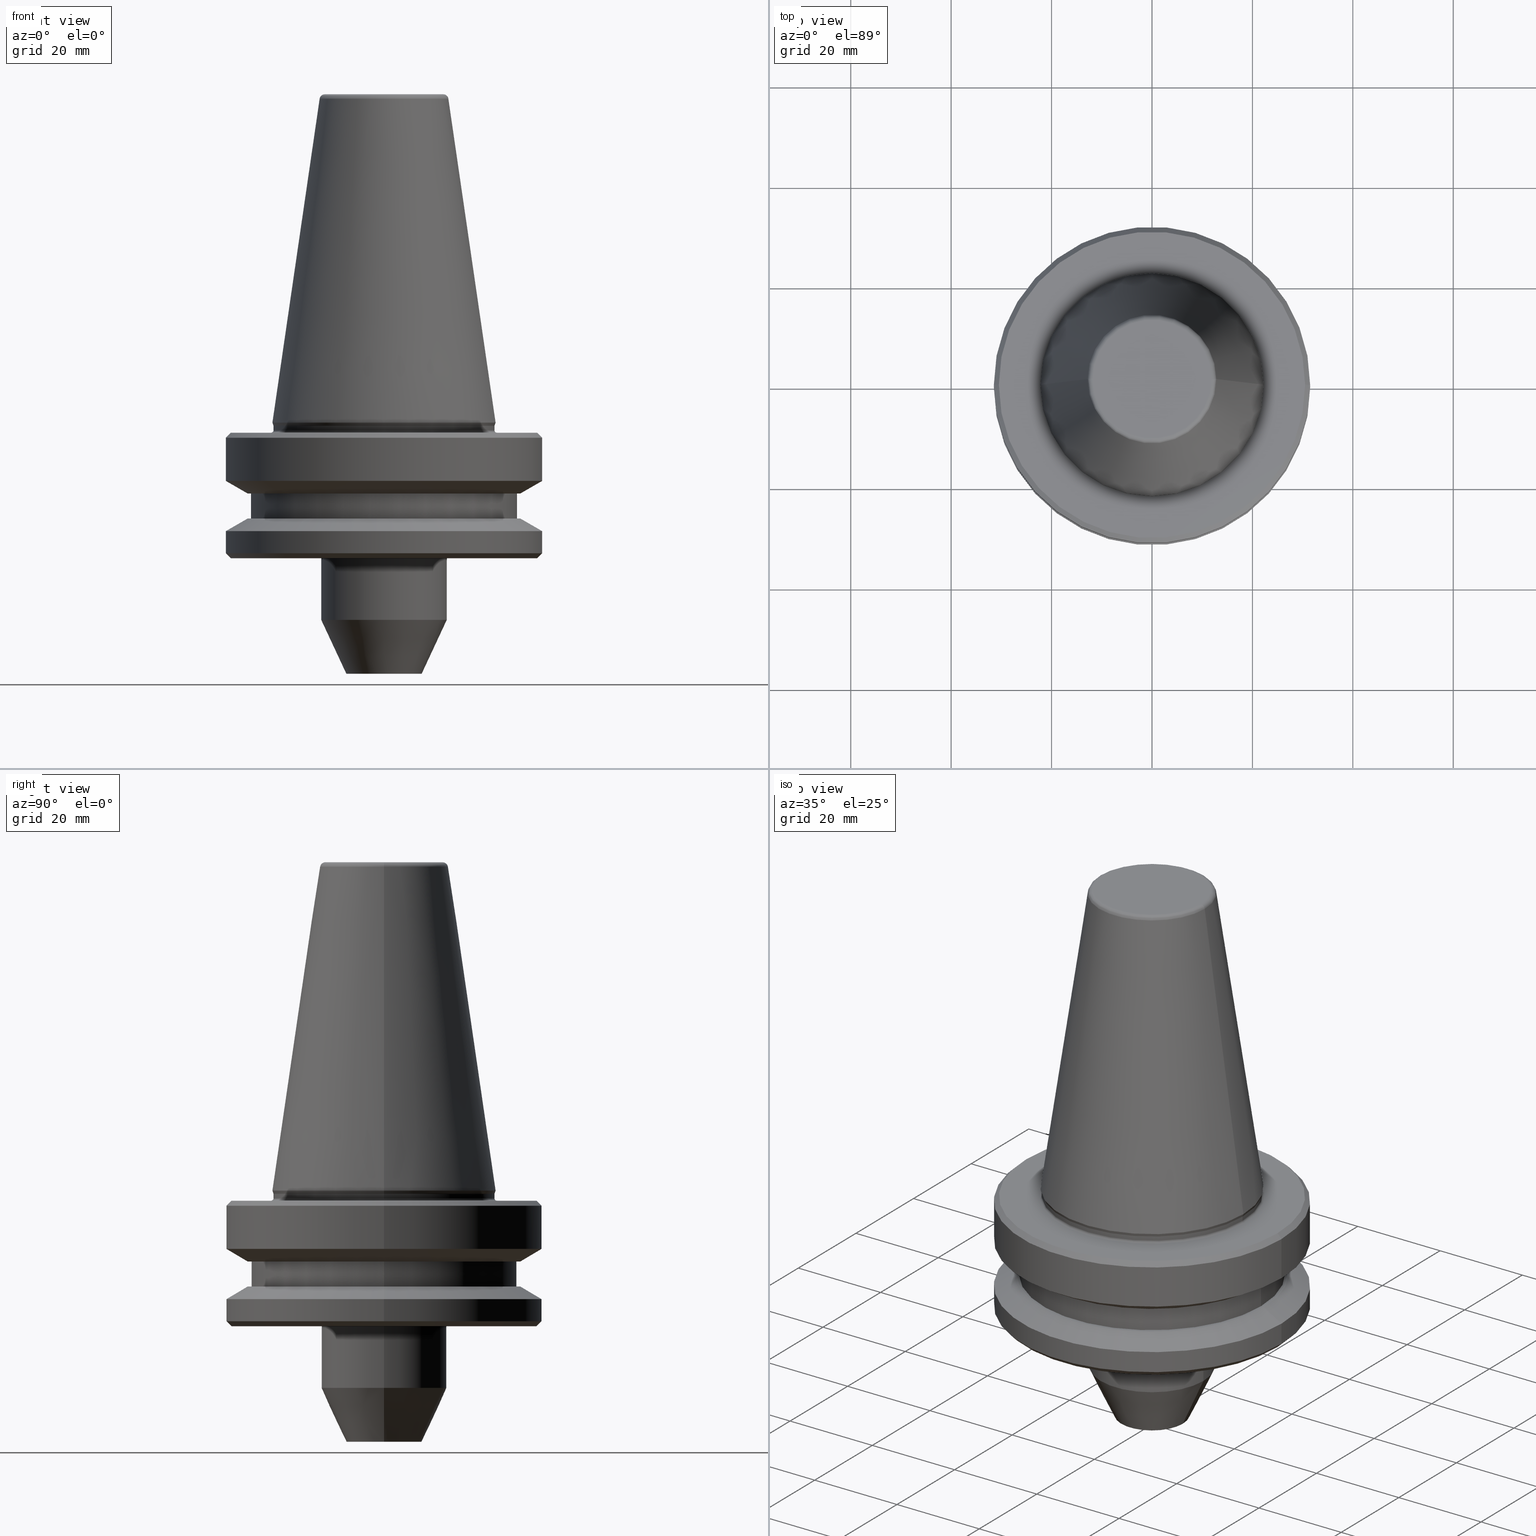
[diagram: canonical four-view strip — front | top / right | iso, engineering-drawing reading convention]
A machine part, canonical four-view strip (front | top / right | iso — engineering-drawing reading convention). The complete STEP part file that produces these views, byte-faithful:
ISO-10303-21;
HEADER;
FILE_DESCRIPTION (( 'STEP AP203' ),
    '1' );
FILE_NAME ('BT40 WE06 050 AD-6.3G15000 SL.STEP',
    '2019-05-22T06:41:05',
    ( '' ),
    ( '' ),
    'SwSTEP 2.0',
    'SolidWorks 2014',
    '' );
FILE_SCHEMA (( 'CONFIG_CONTROL_DESIGN' ));
ENDSEC;

DATA;
#1 = CARTESIAN_POINT ( 'NONE',  ( 11.82266927716813000, 0.0000000000000000000, 65.40000000000057400 ) ) ;
#2 = EDGE_CURVE ( 'NONE', #980, #777, #524, .T. ) ;
#3 = FACE_BOUND ( 'NONE', #922, .T. ) ;
#4 = PLANE ( 'NONE',  #31 ) ;
#5 = DIRECTION ( 'NONE',  ( 1.000000000000000000, 0.0000000000000000000, 0.0000000000000000000 ) ) ;
#6 = DIRECTION ( 'NONE',  ( -1.000000000000000000, 0.0000000000000000000, -0.0000000000000000000 ) ) ;
#7 = CONICAL_SURFACE ( 'NONE', #317, 31.49999999999997200, 1.047197551196601200 ) ;
#8 = CIRCLE ( 'NONE', #94, 26.50000000000019200 ) ;
#9 = DIRECTION ( 'NONE',  ( 0.0000000000000000000, 0.0000000000000000000, -1.000000000000000000 ) ) ;
#10 = CARTESIAN_POINT ( 'NONE',  ( -22.02412295168553800, 2.697177167680944900E-015, -0.5519051543291242400 ) ) ;
#11 = CIRCLE ( 'NONE', #190, 31.49999999999997200 ) ;
#12 = ORIENTED_EDGE ( 'NONE', *, *, #185, .F. ) ;
#13 = AXIS2_PLACEMENT_3D ( 'NONE', #439, #733, #684 ) ;
#14 = DIRECTION ( 'NONE',  ( -0.0000000000000000000, -0.0000000000000000000, 1.000000000000000000 ) ) ;
#15 = CARTESIAN_POINT ( 'NONE',  ( -31.49999999999997200, 0.0000000000000000000, -21.60014200631687900 ) ) ;
#16 = CYLINDRICAL_SURFACE ( 'NONE', #823, 21.99999999999982600 ) ;
#17 = AXIS2_PLACEMENT_3D ( 'NONE', #697, #888, #391 ) ;
#18 = DIRECTION ( 'NONE',  ( -0.0000000000000000000, -0.0000000000000000000, 1.000000000000000000 ) ) ;
#19 = CARTESIAN_POINT ( 'NONE',  ( 27.16962701892289200, 0.0000000000000000000, -14.09999999999966700 ) ) ;
#20 =( LENGTH_UNIT ( ) NAMED_UNIT ( * ) SI_UNIT ( .MILLI., .METRE. ) );
#21 = AXIS2_PLACEMENT_3D ( 'NONE', #632, #171, #416 ) ;
#22 = VERTEX_POINT ( 'NONE', #262 ) ;
#23 = CYLINDRICAL_SURFACE ( 'NONE', #81, 31.49999999999997200 ) ;
#24 = FACE_OUTER_BOUND ( 'NONE', #312, .T. ) ;
#25 = CARTESIAN_POINT ( 'NONE',  ( 26.50000000000019200, 0.0000000000000000000, -14.09999999999966700 ) ) ;
#26 = EDGE_LOOP ( 'NONE', ( #123, #466, #964, #822 ) ) ;
#27 = DIRECTION ( 'NONE',  ( 1.000000000000000000, 0.0000000000000000000, 0.0000000000000000000 ) ) ;
#28 = VERTEX_POINT ( 'NONE', #19 ) ;
#29 = CIRCLE ( 'NONE', #330, 27.16962701892211400 ) ;
#30 = FACE_OUTER_BOUND ( 'NONE', #371, .T. ) ;
#31 = AXIS2_PLACEMENT_3D ( 'NONE', #554, #143, #886 ) ;
#32 = CARTESIAN_POINT ( 'NONE',  ( -22.02412295168553800, 2.697177167680944900E-015, -0.5519051543291242400 ) ) ;
#33 = EDGE_CURVE ( 'NONE', #575, #777, #619, .T. ) ;
#34 = DIRECTION ( 'NONE',  ( -0.0000000000000000000, -0.0000000000000000000, 1.000000000000000000 ) ) ;
#35 = DIRECTION ( 'NONE',  ( 1.000000000000000000, 0.0000000000000000000, 0.0000000000000000000 ) ) ;
#36 = CARTESIAN_POINT ( 'NONE',  ( 0.0000000000000000000, 0.0000000000000000000, -27.00000000000024500 ) ) ;
#37 = APPROVAL ( #635, 'UNSPECIFIED' ) ;
#38 = CARTESIAN_POINT ( 'NONE',  ( 0.0000000000000000000, 0.0000000000000000000, 119.6426757920085500 ) ) ;
#39 = VECTOR ( 'NONE', #881, 1000.000000000000000 ) ;
#40 = DIRECTION ( 'NONE',  ( 0.0000000000000000000, 0.0000000000000000000, -1.000000000000000000 ) ) ;
#41 = FACE_OUTER_BOUND ( 'NONE', #714, .T. ) ;
#42 = ORIENTED_EDGE ( 'NONE', *, *, #33, .F. ) ;
#43 = PLANE ( 'NONE',  #461 ) ;
#44 = DIRECTION ( 'NONE',  ( -0.0000000000000000000, -0.0000000000000000000, 1.000000000000000000 ) ) ;
#45 = DIRECTION ( 'NONE',  ( 1.000000000000000000, 0.0000000000000000000, 0.0000000000000000000 ) ) ;
#46 = AXIS2_PLACEMENT_3D ( 'NONE', #59, #295, #918 ) ;
#47 = DIRECTION ( 'NONE',  ( 1.000000000000000000, 0.0000000000000000000, 0.0000000000000000000 ) ) ;
#48 = CC_DESIGN_PERSON_AND_ORGANIZATION_ASSIGNMENT ( #398, #761, ( #731 ) ) ;
#49 = ORIENTED_EDGE ( 'NONE', *, *, #132, .F. ) ;
#50 = ORIENTED_EDGE ( 'NONE', *, *, #800, .F. ) ;
#51 = ORIENTED_EDGE ( 'NONE', *, *, #289, .F. ) ;
#52 = CIRCLE ( 'NONE', #46, 11.82266927716813000 ) ;
#53 = DIRECTION ( 'NONE',  ( 1.000000000000000000, 0.0000000000000000000, 0.0000000000000000000 ) ) ;
#54 = EDGE_LOOP ( 'NONE', ( #397, #538, #247, #193 ) ) ;
#55 = AXIS2_PLACEMENT_3D ( 'NONE', #444, #388, #84 ) ;
#56 = ORIENTED_EDGE ( 'NONE', *, *, #531, .T. ) ;
#57 = AXIS2_PLACEMENT_3D ( 'NONE', #930, #258, #878 ) ;
#58 = CARTESIAN_POINT ( 'NONE',  ( 0.0000000000000000000, 0.0000000000000000000, -0.6887132116596417200 ) ) ;
#59 = CARTESIAN_POINT ( 'NONE',  ( 0.0000000000000000000, 0.0000000000000000000, 65.40000000000057400 ) ) ;
#60 = CARTESIAN_POINT ( 'NONE',  ( 30.49999999999997200, 3.796405077356791200E-015, -1.999999999999779700 ) ) ;
#61 = CARTESIAN_POINT ( 'NONE',  ( 0.0000000000000000000, 0.0000000000000000000, -21.60014200631687900 ) ) ;
#62 = DIRECTION ( 'NONE',  ( 1.000000000000000000, 0.0000000000000000000, 0.0000000000000000000 ) ) ;
#63 = FACE_OUTER_BOUND ( 'NONE', #865, .T. ) ;
#64 = ORIENTED_EDGE ( 'NONE', *, *, #803, .T. ) ;
#65 = CYLINDRICAL_SURFACE ( 'NONE', #896, 26.50000000000019200 ) ;
#66 = DIRECTION ( 'NONE',  ( -1.000000000000000000, 0.0000000000000000000, -0.0000000000000000000 ) ) ;
#67 = CONICAL_SURFACE ( 'NONE', #885, 27.16962701892289200, 1.047197551196600300 ) ;
#68 = CARTESIAN_POINT ( 'NONE',  ( 0.0000000000000000000, 0.0000000000000000000, -27.00000000000024500 ) ) ;
#69 = CARTESIAN_POINT ( 'NONE',  ( 0.0000000000000000000, 0.0000000000000000000, -0.5519051543291242400 ) ) ;
#70 = DIRECTION ( 'NONE',  ( -0.0000000000000000000, -0.0000000000000000000, 1.000000000000000000 ) ) ;
#71 = EDGE_CURVE ( 'NONE', #811, #367, #368, .T. ) ;
#72 = EDGE_CURVE ( 'NONE', #380, #22, #808, .T. ) ;
#73 = DIRECTION ( 'NONE',  ( 1.000000000000000000, 0.0000000000000000000, 0.0000000000000000000 ) ) ;
#74 = ADVANCED_FACE ( 'NONE', ( #24 ), #942, .T. ) ;
#75 = DIRECTION ( 'NONE',  ( -0.0000000000000000000, -0.0000000000000000000, 1.000000000000000000 ) ) ;
#76 = VERTEX_POINT ( 'NONE', #707 ) ;
#77 = DIRECTION ( 'NONE',  ( -0.0000000000000000000, -0.0000000000000000000, 1.000000000000000000 ) ) ;
#78 = EDGE_LOOP ( 'NONE', ( #598, #832, #191, #647 ) ) ;
#79 = CARTESIAN_POINT ( 'NONE',  ( 0.0000000000000000000, 0.0000000000000000000, -21.60014200631687900 ) ) ;
#80 = VERTEX_POINT ( 'NONE', #557 ) ;
#81 = AXIS2_PLACEMENT_3D ( 'NONE', #806, #516, #205 ) ;
#82 = CIRCLE ( 'NONE', #166, 26.50000000000019200 ) ;
#83 = AXIS2_PLACEMENT_3D ( 'NONE', #426, #257, #893 ) ;
#84 = DIRECTION ( 'NONE',  ( 1.000000000000000000, 0.0000000000000000000, 0.0000000000000000000 ) ) ;
#85 = CARTESIAN_POINT ( 'NONE',  ( 0.0000000000000000000, 0.0000000000000000000, -14.09999999999966700 ) ) ;
#86 = PERSON_AND_ORGANIZATION_ROLE ( 'design_supplier' ) ;
#87 = CIRCLE ( 'NONE', #57, 30.49999999999952700 ) ;
#88 = EDGE_LOOP ( 'NONE', ( #351, #195, #91, #798 ) ) ;
#89 =( NAMED_UNIT ( * ) SI_UNIT ( $, .STERADIAN. ) SOLID_ANGLE_UNIT ( ) );
#90 = PRODUCT_RELATED_PRODUCT_CATEGORY ( 'detail', '', ( #731 ) ) ;
#91 = ORIENTED_EDGE ( 'NONE', *, *, #859, .F. ) ;
#92 = DIRECTION ( 'NONE',  ( -0.0000000000000000000, -0.0000000000000000000, 1.000000000000000000 ) ) ;
#93 = CARTESIAN_POINT ( 'NONE',  ( 27.16962701892211400, 3.592478546794600800E-015, -19.10000000000011500 ) ) ;
#94 = AXIS2_PLACEMENT_3D ( 'NONE', #145, #406, #891 ) ;
#95 = CARTESIAN_POINT ( 'NONE',  ( -31.49999999999997200, 3.857637417314159500E-015, -11.59985799368334900 ) ) ;
#96 = CIRCLE ( 'NONE', #668, 12.49999999999995600 ) ;
#97 = EDGE_CURVE ( 'NONE', #562, #986, #169, .T. ) ;
#98 = CONICAL_SURFACE ( 'NONE', #675, 31.49999999999997200, 1.047197551196601200 ) ;
#99 = ORIENTED_EDGE ( 'NONE', *, *, #732, .F. ) ;
#100 = DIRECTION ( 'NONE',  ( 0.4226182617406996600, 0.0000000000000000000, 0.9063077870366498300 ) ) ;
#101 = ORIENTED_EDGE ( 'NONE', *, *, #103, .T. ) ;
#102 = EDGE_LOOP ( 'NONE', ( #418, #838 ) ) ;
#103 = EDGE_CURVE ( 'NONE', #890, #907, #477, .T. ) ;
#104 = ADVANCED_FACE ( 'NONE', ( #135 ), #299, .F. ) ;
#105 = DIRECTION ( 'NONE',  ( -0.0000000000000000000, -0.0000000000000000000, 1.000000000000000000 ) ) ;
#106 = CIRCLE ( 'NONE', #566, 0.5000000000001114700 ) ;
#107 = DIRECTION ( 'NONE',  ( -0.0000000000000000000, -0.0000000000000000000, 1.000000000000000000 ) ) ;
#108 = DIRECTION ( 'NONE',  ( -0.0000000000000000000, -0.0000000000000000000, 1.000000000000000000 ) ) ;
#109 = CC_DESIGN_DATE_AND_TIME_ASSIGNMENT ( #776, #722, ( #673 ) ) ;
#110 = CARTESIAN_POINT ( 'NONE',  ( 31.49999999999997200, 0.0000000000000000000, -21.60014200631687900 ) ) ;
#111 = DIRECTION ( 'NONE',  ( -0.0000000000000000000, -0.0000000000000000000, 1.000000000000000000 ) ) ;
#112 = LINE ( 'NONE', #660, #809 ) ;
#113 = FACE_OUTER_BOUND ( 'NONE', #102, .T. ) ;
#114 = ORIENTED_EDGE ( 'NONE', *, *, #859, .T. ) ;
#115 = DIRECTION ( 'NONE',  ( 0.7071067811865474600, 0.0000000000000000000, 0.7071067811865475700 ) ) ;
#116 = CARTESIAN_POINT ( 'NONE',  ( 30.49999999999952700, 0.0000000000000000000, -27.00000000000024500 ) ) ;
#117 = DIRECTION ( 'NONE',  ( 1.000000000000000000, 0.0000000000000000000, 0.0000000000000000000 ) ) ;
#118 = CIRCLE ( 'NONE', #467, 0.4000000000000518100 ) ;
#119 = DIRECTION ( 'NONE',  ( 1.000000000000000000, 0.0000000000000000000, 0.0000000000000000000 ) ) ;
#120 = EDGE_CURVE ( 'NONE', #380, #687, #651, .T. ) ;
#121 = MECHANICAL_CONTEXT ( 'NONE', #182, 'mechanical' ) ;
#122 = ORIENTED_EDGE ( 'NONE', *, *, #384, .F. ) ;
#123 = ORIENTED_EDGE ( 'NONE', *, *, #659, .F. ) ;
#124 = ADVANCED_FACE ( 'NONE', ( #970 ), #676, .T. ) ;
#125 = VERTEX_POINT ( 'NONE', #110 ) ;
#126 = ORIENTED_EDGE ( 'NONE', *, *, #800, .T. ) ;
#127 = DIRECTION ( 'NONE',  ( 0.0000000000000000000, 0.0000000000000000000, -1.000000000000000000 ) ) ;
#128 = DIRECTION ( 'NONE',  ( 1.000000000000000000, 0.0000000000000000000, 0.0000000000000000000 ) ) ;
#129 = AXIS2_PLACEMENT_3D ( 'NONE', #500, #831, #346 ) ;
#130 = TOROIDAL_SURFACE ( 'NONE', #643, 22.39999999999986400, 0.4000000000000517000 ) ;
#131 = VECTOR ( 'NONE', #100, 1000.000000000000000 ) ;
#132 = EDGE_CURVE ( 'NONE', #920, #746, #229, .T. ) ;
#133 = DIRECTION ( 'NONE',  ( -0.0000000000000000000, -0.0000000000000000000, 1.000000000000000000 ) ) ;
#134 = CARTESIAN_POINT ( 'NONE',  ( 0.0000000000000000000, 0.0000000000000000000, 119.6426757920085500 ) ) ;
#135 = FACE_OUTER_BOUND ( 'NONE', #634, .T. ) ;
#136 = ORIENTED_EDGE ( 'NONE', *, *, #732, .T. ) ;
#137 = DIRECTION ( 'NONE',  ( 1.000000000000000000, 0.0000000000000000000, 0.0000000000000000000 ) ) ;
#138 = DIRECTION ( 'NONE',  ( 1.000000000000000000, 0.0000000000000000000, 0.0000000000000000000 ) ) ;
#139 = DIRECTION ( 'NONE',  ( -0.0000000000000000000, -0.0000000000000000000, 1.000000000000000000 ) ) ;
#140 = EDGE_CURVE ( 'NONE', #22, #76, #664, .T. ) ;
#141 = VERTEX_POINT ( 'NONE', #25 ) ;
#142 = FACE_OUTER_BOUND ( 'NONE', #54, .T. ) ;
#143 = DIRECTION ( 'NONE',  ( 0.0000000000000000000, -0.0000000000000000000, 1.000000000000000000 ) ) ;
#144 = DIRECTION ( 'NONE',  ( 1.000000000000000000, 0.0000000000000000000, 0.0000000000000000000 ) ) ;
#145 = CARTESIAN_POINT ( 'NONE',  ( 0.0000000000000000000, 0.0000000000000000000, -14.09999999999966700 ) ) ;
#146 = CARTESIAN_POINT ( 'NONE',  ( -30.49999999999997200, 0.0000000000000000000, -1.999999999999779700 ) ) ;
#147 = DIRECTION ( 'NONE',  ( -0.0000000000000000000, -0.0000000000000000000, 1.000000000000000000 ) ) ;
#148 = DIRECTION ( 'NONE',  ( 1.000000000000000000, 0.0000000000000000000, 0.0000000000000000000 ) ) ;
#149 = AXIS2_PLACEMENT_3D ( 'NONE', #225, #658, #447 ) ;
#150 = ORIENTED_EDGE ( 'NONE', *, *, #817, .F. ) ;
#151 = CARTESIAN_POINT ( 'NONE',  ( 31.49999999999997200, 0.0000000000000000000, -11.59985799368334900 ) ) ;
#152 = FACE_OUTER_BOUND ( 'NONE', #663, .T. ) ;
#153 = ADVANCED_FACE ( 'NONE', ( #270 ), #719, .F. ) ;
#154 = ORIENTED_EDGE ( 'NONE', *, *, #625, .F. ) ;
#155 = DIRECTION ( 'NONE',  ( -0.7071067811865474600, 8.659560562354931600E-017, 0.7071067811865475700 ) ) ;
#156 = AXIS2_PLACEMENT_3D ( 'NONE', #265, #377, #509 ) ;
#157 = DIRECTION ( 'NONE',  ( 1.000000000000000000, 0.0000000000000000000, 0.0000000000000000000 ) ) ;
#158 = CC_DESIGN_APPROVAL ( #37, ( #962 ) ) ;
#159 = FACE_OUTER_BOUND ( 'NONE', #654, .T. ) ;
#160 = ADVANCED_FACE ( 'NONE', ( #41 ), #65, .T. ) ;
#161 = DIRECTION ( 'NONE',  ( -0.0000000000000000000, -0.0000000000000000000, 1.000000000000000000 ) ) ;
#162 = AXIS2_PLACEMENT_3D ( 'NONE', #493, #685, #422 ) ;
#163 = DIRECTION ( 'NONE',  ( -0.0000000000000000000, -0.0000000000000000000, 1.000000000000000000 ) ) ;
#164 = COORDINATED_UNIVERSAL_TIME_OFFSET ( 5, 30, .AHEAD. ) ;
#165 = CARTESIAN_POINT ( 'NONE',  ( -21.99999999999985400, 2.724839128102849900E-015, -1.499999999999723800 ) ) ;
#166 = AXIS2_PLACEMENT_3D ( 'NONE', #313, #70, #231 ) ;
#167 = ORIENTED_EDGE ( 'NONE', *, *, #591, .T. ) ;
#168 = PERSON_AND_ORGANIZATION ( #754, #260 ) ;
#169 = CIRCLE ( 'NONE', #989, 31.49999999999997200 ) ;
#170 = EDGE_LOOP ( 'NONE', ( #122, #807, #837, #232 ) ) ;
#171 = DIRECTION ( 'NONE',  ( 0.0000000000000000000, -1.000000000000000000, 0.0000000000000000000 ) ) ;
#172 = ORIENTED_EDGE ( 'NONE', *, *, #531, .F. ) ;
#173 = LOCAL_TIME ( 12, 11, 5.000000000000000000, #677 ) ;
#174 = CARTESIAN_POINT ( 'NONE',  ( 0.0000000000000000000, 0.0000000000000000000, -19.10000000000011500 ) ) ;
#175 = CIRCLE ( 'NONE', #945, 30.49999999999997200 ) ;
#176 = CC_DESIGN_APPROVAL ( #682, ( #210 ) ) ;
#177 = AXIS2_PLACEMENT_3D ( 'NONE', #355, #14, #432 ) ;
#178 = ADVANCED_FACE ( 'NONE', ( #63 ), #43, .F. ) ;
#179 = DIRECTION ( 'NONE',  ( 1.000000000000000000, 0.0000000000000000000, 0.0000000000000000000 ) ) ;
#180 = DIRECTION ( 'NONE',  ( 1.000000000000000000, 0.0000000000000000000, 0.0000000000000000000 ) ) ;
#181 = ORIENTED_EDGE ( 'NONE', *, *, #839, .T. ) ;
#182 = APPLICATION_CONTEXT ( 'configuration controlled 3d designs of mechanical parts and assemblies' ) ;
#183 = VERTEX_POINT ( 'NONE', #146 ) ;
#184 = DIRECTION ( 'NONE',  ( -1.000000000000000000, 0.0000000000000000000, 0.0000000000000000000 ) ) ;
#185 = EDGE_CURVE ( 'NONE', #687, #76, #558, .T. ) ;
#186 = DIRECTION ( 'NONE',  ( 0.0000000000000000000, 0.0000000000000000000, -1.000000000000000000 ) ) ;
#187 = CARTESIAN_POINT ( 'NONE',  ( 31.49999999999997200, 0.0000000000000000000, 119.6426757920085500 ) ) ;
#188 = CC_DESIGN_PERSON_AND_ORGANIZATION_ASSIGNMENT ( #652, #738, ( #962 ) ) ;
#189 = CARTESIAN_POINT ( 'NONE',  ( 0.0000000000000000000, 0.0000000000000000000, -1.999999999999779700 ) ) ;
#190 = AXIS2_PLACEMENT_3D ( 'NONE', #408, #608, #642 ) ;
#191 = ORIENTED_EDGE ( 'NONE', *, *, #869, .T. ) ;
#192 = CARTESIAN_POINT ( 'NONE',  ( 0.0000000000000000000, 0.0000000000000000000, -27.00000000000024500 ) ) ;
#193 = ORIENTED_EDGE ( 'NONE', *, *, #578, .F. ) ;
#194 = AXIS2_PLACEMENT_3D ( 'NONE', #958, #937, #713 ) ;
#195 = ORIENTED_EDGE ( 'NONE', *, *, #352, .T. ) ;
#196 = EDGE_CURVE ( 'NONE', #982, #986, #487, .T. ) ;
#197 = DIRECTION ( 'NONE',  ( 1.000000000000000000, 0.0000000000000000000, 0.0000000000000000000 ) ) ;
#198 = LINE ( 'NONE', #605, #399 ) ;
#199 = EDGE_CURVE ( 'NONE', #595, #218, #571, .T. ) ;
#200 = DIRECTION ( 'NONE',  ( -0.0000000000000000000, -0.0000000000000000000, 1.000000000000000000 ) ) ;
#201 = CARTESIAN_POINT ( 'NONE',  ( 0.0000000000000000000, 0.0000000000000000000, -0.5519051543291242400 ) ) ;
#202 = ORIENTED_EDGE ( 'NONE', *, *, #325, .T. ) ;
#203 = VERTEX_POINT ( 'NONE', #93 ) ;
#204 = ORIENTED_EDGE ( 'NONE', *, *, #415, .F. ) ;
#205 = DIRECTION ( 'NONE',  ( 1.000000000000000000, 0.0000000000000000000, 0.0000000000000000000 ) ) ;
#206 = ADVANCED_FACE ( 'NONE', ( #113, #758 ), #4, .F. ) ;
#207 = CIRCLE ( 'NONE', #21, 0.5000000000001114700 ) ;
#208 = PLANE ( 'NONE',  #601 ) ;
#209 = AXIS2_PLACEMENT_3D ( 'NONE', #915, #532, #497 ) ;
#210 = SECURITY_CLASSIFICATION ( '', '', #939 ) ;
#211 = AXIS2_PLACEMENT_3D ( 'NONE', #799, #333, #197 ) ;
#212 = EDGE_CURVE ( 'NONE', #954, #413, #875, .T. ) ;
#213 = CARTESIAN_POINT ( 'NONE',  ( 26.50000000000019200, 0.0000000000000000000, 119.6426757920085500 ) ) ;
#214 = DIRECTION ( 'NONE',  ( -0.0000000000000000000, -0.0000000000000000000, 1.000000000000000000 ) ) ;
#215 = ORIENTED_EDGE ( 'NONE', *, *, #744, .T. ) ;
#216 = AXIS2_PLACEMENT_3D ( 'NONE', #387, #534, #66 ) ;
#217 = CIRCLE ( 'NONE', #656, 12.49999999999995600 ) ;
#218 = VERTEX_POINT ( 'NONE', #277 ) ;
#219 = CALENDAR_DATE ( 2019, 22, 5 ) ;
#220 = FACE_OUTER_BOUND ( 'NONE', #772, .T. ) ;
#221 = CIRCLE ( 'NONE', #271, 12.81220206925726000 ) ;
#222 = DIRECTION ( 'NONE',  ( 1.000000000000000000, 0.0000000000000000000, 0.0000000000000000000 ) ) ;
#223 = PLANE ( 'NONE',  #216 ) ;
#224 = DIRECTION ( 'NONE',  ( 1.000000000000000000, 0.0000000000000000000, 0.0000000000000000000 ) ) ;
#225 = CARTESIAN_POINT ( 'NONE',  ( 0.0000000000000000000, 0.0000000000000000000, -14.09999999999966700 ) ) ;
#226 = ORIENTED_EDGE ( 'NONE', *, *, #419, .T. ) ;
#227 = CONICAL_SURFACE ( 'NONE', #553, 31.49999999999997200, 0.7853981633974482800 ) ;
#228 = AXIS2_PLACEMENT_3D ( 'NONE', #263, #44, #285 ) ;
#229 = CIRCLE ( 'NONE', #913, 22.22499999999982700 ) ;
#230 = MANIFOLD_SOLID_BREP ( 'Revolve1', #584 ) ;
#231 = DIRECTION ( 'NONE',  ( 1.000000000000000000, 0.0000000000000000000, 0.0000000000000000000 ) ) ;
#232 = ORIENTED_EDGE ( 'NONE', *, *, #319, .T. ) ;
#233 = APPROVAL_PERSON_ORGANIZATION ( #919, #37, #876 ) ;
#234 = EDGE_LOOP ( 'NONE', ( #892, #999 ) ) ;
#235 = DATE_AND_TIME ( #563, #827 ) ;
#236 = DIRECTION ( 'NONE',  ( 1.000000000000000000, 0.0000000000000000000, 0.0000000000000000000 ) ) ;
#237 = DIRECTION ( 'NONE',  ( 1.000000000000000000, 0.0000000000000000000, 0.0000000000000000000 ) ) ;
#238 = CARTESIAN_POINT ( 'NONE',  ( 30.49999999999952700, 0.0000000000000000000, -27.00000000000024500 ) ) ;
#239 = DATE_AND_TIME ( #853, #938 ) ;
#240 = AXIS2_PLACEMENT_3D ( 'NONE', #427, #266, #127 ) ;
#241 = DIRECTION ( 'NONE',  ( 1.224646799147353200E-016, 1.000000000000000000, 0.0000000000000000000 ) ) ;
#242 = CIRCLE ( 'NONE', #695, 26.50000000000019200 ) ;
#243 = EDGE_LOOP ( 'NONE', ( #114, #522, #612, #292 ) ) ;
#244 = CONICAL_SURFACE ( 'NONE', #335, 27.16962701892289200, 1.047197551196600300 ) ;
#245 = ORIENTED_EDGE ( 'NONE', *, *, #436, .F. ) ;
#246 = ORIENTED_EDGE ( 'NONE', *, *, #763, .F. ) ;
#247 = ORIENTED_EDGE ( 'NONE', *, *, #289, .T. ) ;
#248 = ADVANCED_FACE ( 'NONE', ( #379 ), #7, .T. ) ;
#249 = CARTESIAN_POINT ( 'NONE',  ( -12.49999999999995600, 1.530808498934186000E-015, -27.00000000000024500 ) ) ;
#250 = CIRCLE ( 'NONE', #581, 0.9999999999999783500 ) ;
#251 = CARTESIAN_POINT ( 'NONE',  ( 0.0000000000000000000, 0.0000000000000000000, -1.499999999999723800 ) ) ;
#252 = CC_DESIGN_PERSON_AND_ORGANIZATION_ASSIGNMENT ( #446, #86, ( #962 ) ) ;
#253 = DIRECTION ( 'NONE',  ( 1.224646799147353200E-016, 1.000000000000000000, 0.0000000000000000000 ) ) ;
#254 = ADVANCED_FACE ( 'NONE', ( #440 ), #98, .T. ) ;
#255 = AXIS2_PLACEMENT_3D ( 'NONE', #189, #728, #117 ) ;
#256 = DIRECTION ( 'NONE',  ( -1.000000000000000000, 0.0000000000000000000, 0.0000000000000000000 ) ) ;
#257 = DIRECTION ( 'NONE',  ( -0.0000000000000000000, -0.0000000000000000000, 1.000000000000000000 ) ) ;
#258 = DIRECTION ( 'NONE',  ( -0.0000000000000000000, -0.0000000000000000000, 1.000000000000000000 ) ) ;
#259 = CIRCLE ( 'NONE', #438, 7.499999999999951200 ) ;
#260 = ORGANIZATION ( 'UNSPECIFIED', 'UNSPECIFIED', '' ) ;
#261 = ORIENTED_EDGE ( 'NONE', *, *, #603, .F. ) ;
#262 = CARTESIAN_POINT ( 'NONE',  ( -30.49999999999952700, 3.796405077356765100E-015, -27.00000000000024500 ) ) ;
#263 = CARTESIAN_POINT ( 'NONE',  ( 0.0000000000000000000, 0.0000000000000000000, -14.09999999999966700 ) ) ;
#264 = DIRECTION ( 'NONE',  ( -0.0000000000000000000, -0.0000000000000000000, 1.000000000000000000 ) ) ;
#265 = CARTESIAN_POINT ( 'NONE',  ( 0.0000000000000000000, 0.0000000000000000000, 0.0000000000000000000 ) ) ;
#266 = DIRECTION ( 'NONE',  ( 0.0000000000000000000, -1.000000000000000000, 0.0000000000000000000 ) ) ;
#267 = CARTESIAN_POINT ( 'NONE',  ( 22.02412295168553800, 0.0000000000000000000, -0.5519051543291242400 ) ) ;
#268 = ORIENTED_EDGE ( 'NONE', *, *, #140, .F. ) ;
#269 = ORIENTED_EDGE ( 'NONE', *, *, #419, .F. ) ;
#270 = FACE_OUTER_BOUND ( 'NONE', #972, .T. ) ;
#271 = AXIS2_PLACEMENT_3D ( 'NONE', #310, #200, #739 ) ;
#272 = EDGE_LOOP ( 'NONE', ( #867, #525 ) ) ;
#273 = CARTESIAN_POINT ( 'NONE',  ( 22.39999999999986400, 0.0000000000000000000, -0.6887132116596417200 ) ) ;
#274 = ORIENTED_EDGE ( 'NONE', *, *, #744, .F. ) ;
#275 = AXIS2_PLACEMENT_3D ( 'NONE', #401, #161, #904 ) ;
#276 = COORDINATED_UNIVERSAL_TIME_OFFSET ( 5, 30, .AHEAD. ) ;
#277 = CARTESIAN_POINT ( 'NONE',  ( -31.49999999999997200, 3.857637417314159500E-015, -2.999999999999780600 ) ) ;
#278 = EDGE_CURVE ( 'NONE', #367, #536, #785, .T. ) ;
#279 = ORIENTED_EDGE ( 'NONE', *, *, #572, .T. ) ;
#280 = ORIENTED_EDGE ( 'NONE', *, *, #2, .F. ) ;
#281 = DIRECTION ( 'NONE',  ( -0.0000000000000000000, -0.0000000000000000000, 1.000000000000000000 ) ) ;
#282 = LINE ( 'NONE', #336, #711 ) ;
#283 = ORIENTED_EDGE ( 'NONE', *, *, #793, .T. ) ;
#284 = ORIENTED_EDGE ( 'NONE', *, *, #140, .T. ) ;
#285 = DIRECTION ( 'NONE',  ( 1.000000000000000000, 0.0000000000000000000, 0.0000000000000000000 ) ) ;
#286 = EDGE_CURVE ( 'NONE', #22, #380, #87, .T. ) ;
#287 = AXIS2_PLACEMENT_3D ( 'NONE', #560, #40, #564 ) ;
#288 = CARTESIAN_POINT ( 'NONE',  ( 0.0000000000000000000, 0.0000000000000000000, -1.999999999999779700 ) ) ;
#289 = EDGE_CURVE ( 'NONE', #80, #489, #321, .T. ) ;
#290 = ORIENTED_EDGE ( 'NONE', *, *, #977, .F. ) ;
#291 = CARTESIAN_POINT ( 'NONE',  ( -21.99999999999979700, 2.694222958124153900E-015, -0.6887132116596417200 ) ) ;
#292 = ORIENTED_EDGE ( 'NONE', *, *, #212, .F. ) ;
#293 = ORIENTED_EDGE ( 'NONE', *, *, #185, .T. ) ;
#294 = CONICAL_SURFACE ( 'NONE', #484, 31.49999999999997200, 0.7853981633974482800 ) ;
#295 = DIRECTION ( 'NONE',  ( -0.0000000000000000000, -0.0000000000000000000, 1.000000000000000000 ) ) ;
#296 = CARTESIAN_POINT ( 'NONE',  ( 0.0000000000000000000, 0.0000000000000000000, -1.999999999999779700 ) ) ;
#297 = CARTESIAN_POINT ( 'NONE',  ( 0.0000000000000000000, 0.0000000000000000000, -14.09999999999966700 ) ) ;
#298 = VERTEX_POINT ( 'NONE', #305 ) ;
#299 = TOROIDAL_SURFACE ( 'NONE', #488, 22.49999999999996400, 0.5000000000001114700 ) ;
#300 = EDGE_LOOP ( 'NONE', ( #50, #906 ) ) ;
#301 = ORIENTED_EDGE ( 'NONE', *, *, #638, .F. ) ;
#302 = CARTESIAN_POINT ( 'NONE',  ( 0.0000000000000000000, 0.0000000000000000000, -11.59985799368334900 ) ) ;
#303 = CYLINDRICAL_SURFACE ( 'NONE', #83, 31.49999999999997200 ) ;
#304 = ADVANCED_FACE ( 'NONE', ( #511 ), #349, .T. ) ;
#305 = CARTESIAN_POINT ( 'NONE',  ( -12.49999999999995600, 1.530808498934186000E-015, -39.27746539754928500 ) ) ;
#306 = VECTOR ( 'NONE', #115, 1000.000000000000000 ) ;
#307 = CARTESIAN_POINT ( 'NONE',  ( 0.0000000000000000000, 0.0000000000000000000, 119.6426757920085500 ) ) ;
#308 = ORIENTED_EDGE ( 'NONE', *, *, #196, .T. ) ;
#309 = EDGE_LOOP ( 'NONE', ( #339, #284, #12, #546 ) ) ;
#310 = CARTESIAN_POINT ( 'NONE',  ( 0.0000000000000000000, 0.0000000000000000000, 64.54430818888879200 ) ) ;
#311 = APPROVAL_DATE_TIME ( #704, #789 ) ;
#312 = EDGE_LOOP ( 'NONE', ( #356, #636, #911, #357 ) ) ;
#313 = CARTESIAN_POINT ( 'NONE',  ( 0.0000000000000000000, 0.0000000000000000000, -19.10000000000011500 ) ) ;
#314 = CONICAL_SURFACE ( 'NONE', #671, 7.499999999999951200, 0.4363323129985826600 ) ;
#315 = CARTESIAN_POINT ( 'NONE',  ( -22.22499999999982700, 0.0000000000000000000, 0.0000000000000000000 ) ) ;
#316 = CIRCLE ( 'NONE', #194, 12.81220206925726000 ) ;
#317 = AXIS2_PLACEMENT_3D ( 'NONE', #520, #186, #256 ) ;
#318 = PERSON_AND_ORGANIZATION ( #754, #260 ) ;
#319 = EDGE_CURVE ( 'NONE', #407, #125, #833, .T. ) ;
#320 = CARTESIAN_POINT ( 'NONE',  ( -27.16962701892289200, 3.327319676275136300E-015, -14.09999999999966700 ) ) ;
#321 = CIRCLE ( 'NONE', #209, 22.49999999999996400 ) ;
#322 = PRODUCT_DEFINITION_SHAPE ( 'NONE', 'NONE',  #673 ) ;
#323 = CARTESIAN_POINT ( 'NONE',  ( 0.0000000000000000000, 0.0000000000000000000, 0.0000000000000000000 ) ) ;
#324 = CIRCLE ( 'NONE', #513, 26.50000000000019200 ) ;
#325 = EDGE_CURVE ( 'NONE', #536, #367, #52, .T. ) ;
#326 = ORIENTED_EDGE ( 'NONE', *, *, #286, .T. ) ;
#327 = ORIENTED_EDGE ( 'NONE', *, *, #352, .F. ) ;
#328 = DIRECTION ( 'NONE',  ( 0.7071067811865474600, 8.659560562354931600E-017, -0.7071067811865475700 ) ) ;
#329 = CARTESIAN_POINT ( 'NONE',  ( 0.0000000000000000000, 0.0000000000000000000, -2.999999999999780600 ) ) ;
#330 = AXIS2_PLACEMENT_3D ( 'NONE', #949, #975, #353 ) ;
#331 = AXIS2_PLACEMENT_3D ( 'NONE', #792, #281, #623 ) ;
#332 = ADVANCED_FACE ( 'NONE', ( #856 ), #244, .T. ) ;
#333 = DIRECTION ( 'NONE',  ( -0.0000000000000000000, -0.0000000000000000000, 1.000000000000000000 ) ) ;
#334 = CIRCLE ( 'NONE', #932, 22.02412295168553800 ) ;
#335 = AXIS2_PLACEMENT_3D ( 'NONE', #85, #111, #53 ) ;
#336 = CARTESIAN_POINT ( 'NONE',  ( 21.99999999999982600, 0.0000000000000000000, 119.6426757920085500 ) ) ;
#337 = ORIENTED_EDGE ( 'NONE', *, *, #412, .T. ) ;
#338 = EDGE_CURVE ( 'NONE', #953, #963, #334, .T. ) ;
#339 = ORIENTED_EDGE ( 'NONE', *, *, #72, .T. ) ;
#340 = CARTESIAN_POINT ( 'NONE',  ( -22.22499999999982700, 2.721777511104971500E-015, 0.0000000000000000000 ) ) ;
#341 = CIRCLE ( 'NONE', #344, 22.22499999999982700 ) ;
#342 = CONICAL_SURFACE ( 'NONE', #211, 22.02412295168553800, 0.3490658503994998300 ) ;
#343 = CARTESIAN_POINT ( 'NONE',  ( 0.0000000000000000000, 0.0000000000000000000, -27.00000000000024500 ) ) ;
#344 = AXIS2_PLACEMENT_3D ( 'NONE', #323, #864, #613 ) ;
#345 = DIRECTION ( 'NONE',  ( 1.000000000000000000, 0.0000000000000000000, 0.0000000000000000000 ) ) ;
#346 = DIRECTION ( 'NONE',  ( 1.000000000000000000, 0.0000000000000000000, 0.0000000000000000000 ) ) ;
#347 = CARTESIAN_POINT ( 'NONE',  ( -27.16962701892211400, 0.0000000000000000000, -19.10000000000011500 ) ) ;
#348 = ORIENTED_EDGE ( 'NONE', *, *, #97, .F. ) ;
#349 = CONICAL_SURFACE ( 'NONE', #162, 30.49999999999952700, 0.7853981633974482800 ) ;
#350 = DIRECTION ( 'NONE',  ( -1.000000000000000000, 1.224646799147347800E-016, 0.0000000000000000000 ) ) ;
#351 = ORIENTED_EDGE ( 'NONE', *, *, #499, .T. ) ;
#352 = EDGE_CURVE ( 'NONE', #952, #298, #609, .T. ) ;
#353 = DIRECTION ( 'NONE',  ( 1.000000000000000000, 0.0000000000000000000, 0.0000000000000000000 ) ) ;
#354 = DIRECTION ( 'NONE',  ( 0.0000000000000000000, 0.0000000000000000000, -1.000000000000000000 ) ) ;
#355 = CARTESIAN_POINT ( 'NONE',  ( 0.0000000000000000000, 0.0000000000000000000, -0.6887132116596417200 ) ) ;
#356 = ORIENTED_EDGE ( 'NONE', *, *, #841, .T. ) ;
#357 = ORIENTED_EDGE ( 'NONE', *, *, #71, .F. ) ;
#358 = ORIENTED_EDGE ( 'NONE', *, *, #551, .T. ) ;
#359 = EDGE_CURVE ( 'NONE', #141, #907, #324, .T. ) ;
#360 = CARTESIAN_POINT ( 'NONE',  ( -26.50000000000019200, 3.245314017740509400E-015, 119.6426757920085500 ) ) ;
#361 = AXIS2_PLACEMENT_3D ( 'NONE', #174, #672, #382 ) ;
#362 = DIRECTION ( 'NONE',  ( -0.0000000000000000000, -0.0000000000000000000, 1.000000000000000000 ) ) ;
#363 = DIRECTION ( 'NONE',  ( 0.8660254037844398200, 0.0000000000000000000, 0.4999999999999977200 ) ) ;
#364 = AXIS2_PLACEMENT_3D ( 'NONE', #329, #77, #508 ) ;
#365 = DIRECTION ( 'NONE',  ( -0.0000000000000000000, -0.0000000000000000000, 1.000000000000000000 ) ) ;
#366 = EDGE_CURVE ( 'NONE', #986, #218, #889, .T. ) ;
#367 = VERTEX_POINT ( 'NONE', #1 ) ;
#368 = CIRCLE ( 'NONE', #240, 0.9999999999999731300 ) ;
#369 = LINE ( 'NONE', #187, #712 ) ;
#370 = DIRECTION ( 'NONE',  ( -0.0000000000000000000, -0.0000000000000000000, 1.000000000000000000 ) ) ;
#371 = EDGE_LOOP ( 'NONE', ( #268, #326, #526, #679 ) ) ;
#372 = ORIENTED_EDGE ( 'NONE', *, *, #499, .F. ) ;
#373 = FACE_OUTER_BOUND ( 'NONE', #610, .T. ) ;
#374 = DIRECTION ( 'NONE',  ( -0.0000000000000000000, -0.0000000000000000000, 1.000000000000000000 ) ) ;
#375 = EDGE_CURVE ( 'NONE', #795, #980, #282, .T. ) ;
#376 = LINE ( 'NONE', #213, #390 ) ;
#377 = DIRECTION ( 'NONE',  ( 0.0000000000000000000, 0.0000000000000000000, -1.000000000000000000 ) ) ;
#378 = ORIENTED_EDGE ( 'NONE', *, *, #686, .F. ) ;
#379 = FACE_OUTER_BOUND ( 'NONE', #170, .T. ) ;
#380 = VERTEX_POINT ( 'NONE', #238 ) ;
#381 = ORIENTED_EDGE ( 'NONE', *, *, #97, .T. ) ;
#382 = DIRECTION ( 'NONE',  ( 1.000000000000000000, 0.0000000000000000000, 0.0000000000000000000 ) ) ;
#383 = TOROIDAL_SURFACE ( 'NONE', #957, 22.49999999999996400, 0.5000000000001114700 ) ;
#384 = EDGE_CURVE ( 'NONE', #203, #125, #112, .T. ) ;
#385 = DIRECTION ( 'NONE',  ( 1.000000000000000000, 0.0000000000000000000, 0.0000000000000000000 ) ) ;
#386 = COORDINATED_UNIVERSAL_TIME_OFFSET ( 5, 30, .AHEAD. ) ;
#387 = CARTESIAN_POINT ( 'NONE',  ( 0.0000000000000000000, 30.49999999999997200, -1.999999999999779700 ) ) ;
#388 = DIRECTION ( 'NONE',  ( -0.0000000000000000000, -0.0000000000000000000, 1.000000000000000000 ) ) ;
#389 = DIRECTION ( 'NONE',  ( -0.8660254037844403700, 0.0000000000000000000, -0.4999999999999970000 ) ) ;
#390 = VECTOR ( 'NONE', #264, 1000.000000000000000 ) ;
#391 = DIRECTION ( 'NONE',  ( 1.000000000000000000, 0.0000000000000000000, 0.0000000000000000000 ) ) ;
#392 = FACE_OUTER_BOUND ( 'NONE', #570, .T. ) ;
#393 = CARTESIAN_POINT ( 'NONE',  ( -21.99999999999982600, 2.694222958124155500E-015, 119.6426757920085500 ) ) ;
#394 = ORIENTED_EDGE ( 'NONE', *, *, #199, .F. ) ;
#395 = APPROVAL_DATE_TIME ( #235, #37 ) ;
#396 = DIRECTION ( 'NONE',  ( -0.0000000000000000000, -0.0000000000000000000, 1.000000000000000000 ) ) ;
#397 = ORIENTED_EDGE ( 'NONE', *, *, #544, .F. ) ;
#398 = PERSON_AND_ORGANIZATION ( #754, #260 ) ;
#399 = VECTOR ( 'NONE', #710, 1000.000000000000000 ) ;
#400 = EDGE_CURVE ( 'NONE', #76, #687, #11, .T. ) ;
#401 = CARTESIAN_POINT ( 'NONE',  ( 0.0000000000000000000, 0.0000000000000000000, -1.499999999999723800 ) ) ;
#402 = DIRECTION ( 'NONE',  ( -0.0000000000000000000, -0.0000000000000000000, 1.000000000000000000 ) ) ;
#403 = VERTEX_POINT ( 'NONE', #347 ) ;
#404 = VECTOR ( 'NONE', #528, 1000.000000000000000 ) ;
#405 = CARTESIAN_POINT ( 'NONE',  ( 0.0000000000000000000, 0.0000000000000000000, 64.40000000000057400 ) ) ;
#406 = DIRECTION ( 'NONE',  ( -0.0000000000000000000, -0.0000000000000000000, 1.000000000000000000 ) ) ;
#407 = VERTEX_POINT ( 'NONE', #507 ) ;
#408 = CARTESIAN_POINT ( 'NONE',  ( 0.0000000000000000000, 0.0000000000000000000, -25.99999999999980100 ) ) ;
#409 = FACE_OUTER_BOUND ( 'NONE', #782, .T. ) ;
#410 = CARTESIAN_POINT ( 'NONE',  ( -27.16962701892289200, 3.592478546794647300E-015, -14.09999999999966700 ) ) ;
#411 = DIRECTION ( 'NONE',  ( 0.0000000000000000000, -1.000000000000000000, 0.0000000000000000000 ) ) ;
#412 = EDGE_CURVE ( 'NONE', #996, #595, #630, .T. ) ;
#413 = VERTEX_POINT ( 'NONE', #956 ) ;
#414 = ORIENTED_EDGE ( 'NONE', *, *, #319, .F. ) ;
#415 = EDGE_CURVE ( 'NONE', #403, #407, #462, .T. ) ;
#416 = DIRECTION ( 'NONE',  ( 0.0000000000000000000, 0.0000000000000000000, -1.000000000000000000 ) ) ;
#417 = VECTOR ( 'NONE', #694, 1000.000000000000000 ) ;
#418 = ORIENTED_EDGE ( 'NONE', *, *, #72, .F. ) ;
#419 = EDGE_CURVE ( 'NONE', #76, #407, #621, .T. ) ;
#420 = ORIENTED_EDGE ( 'NONE', *, *, #793, .F. ) ;
#421 = PERSON_AND_ORGANIZATION ( #754, #260 ) ;
#422 = DIRECTION ( 'NONE',  ( 1.000000000000000000, 0.0000000000000000000, 0.0000000000000000000 ) ) ;
#423 = LINE ( 'NONE', #766, #895 ) ;
#424 = DIRECTION ( 'NONE',  ( -0.0000000000000000000, -0.0000000000000000000, 1.000000000000000000 ) ) ;
#425 = CARTESIAN_POINT ( 'NONE',  ( 0.0000000000000000000, 0.0000000000000000000, -11.59985799368334900 ) ) ;
#426 = CARTESIAN_POINT ( 'NONE',  ( 0.0000000000000000000, 0.0000000000000000000, 119.6426757920085500 ) ) ;
#427 = CARTESIAN_POINT ( 'NONE',  ( 11.82266927716813000, 0.0000000000000000000, 64.40000000000057400 ) ) ;
#428 = CYLINDRICAL_SURFACE ( 'NONE', #740, 21.99999999999982600 ) ;
#429 = ORIENTED_EDGE ( 'NONE', *, *, #196, .F. ) ;
#430 = ORIENTED_EDGE ( 'NONE', *, *, #338, .F. ) ;
#431 = EDGE_CURVE ( 'NONE', #413, #464, #217, .T. ) ;
#432 = DIRECTION ( 'NONE',  ( 1.000000000000000000, 0.0000000000000000000, 0.0000000000000000000 ) ) ;
#433 = DIRECTION ( 'NONE',  ( 1.224646799147353200E-016, 1.000000000000000000, 0.0000000000000000000 ) ) ;
#434 = ORIENTED_EDGE ( 'NONE', *, *, #431, .T. ) ;
#435 = FACE_BOUND ( 'NONE', #272, .T. ) ;
#436 = EDGE_CURVE ( 'NONE', #982, #28, #533, .T. ) ;
#437 = DATE_TIME_ROLE ( 'classification_date' ) ;
#438 = AXIS2_PLACEMENT_3D ( 'NONE', #723, #561, #73 ) ;
#439 = CARTESIAN_POINT ( 'NONE',  ( 0.0000000000000000000, 0.0000000000000000000, 119.6426757920085500 ) ) ;
#440 = FACE_OUTER_BOUND ( 'NONE', #943, .T. ) ;
#441 = LINE ( 'NONE', #715, #417 ) ;
#442 = ORIENTED_EDGE ( 'NONE', *, *, #578, .T. ) ;
#443 = CARTESIAN_POINT ( 'NONE',  ( 0.0000000000000000000, 0.0000000000000000000, 119.6426757920085500 ) ) ;
#444 = CARTESIAN_POINT ( 'NONE',  ( 0.0000000000000000000, 0.0000000000000000000, -25.99999999999980100 ) ) ;
#445 = DIRECTION ( 'NONE',  ( -1.000000000000000000, 1.224646799147354900E-016, 0.0000000000000000000 ) ) ;
#446 = PERSON_AND_ORGANIZATION ( #754, #260 ) ;
#447 = DIRECTION ( 'NONE',  ( 1.000000000000000000, 0.0000000000000000000, 0.0000000000000000000 ) ) ;
#448 = DIRECTION ( 'NONE',  ( -0.0000000000000000000, -0.0000000000000000000, 1.000000000000000000 ) ) ;
#449 = DIRECTION ( 'NONE',  ( -1.000000000000000000, 0.0000000000000000000, 0.0000000000000000000 ) ) ;
#450 = AXIS2_PLACEMENT_3D ( 'NONE', #459, #253, #350 ) ;
#451 = FACE_OUTER_BOUND ( 'NONE', #88, .T. ) ;
#452 = VECTOR ( 'NONE', #708, 1000.000000000000000 ) ;
#453 = AXIS2_PLACEMENT_3D ( 'NONE', #527, #753, #747 ) ;
#454 = CARTESIAN_POINT ( 'NONE',  ( 0.0000000000000000000, 11.82266927716813000, 65.40000000000046000 ) ) ;
#455 = ORIENTED_EDGE ( 'NONE', *, *, #669, .T. ) ;
#456 = AXIS2_PLACEMENT_3D ( 'NONE', #58, #34, #224 ) ;
#457 = CARTESIAN_POINT ( 'NONE',  ( 0.0000000000000000000, 0.0000000000000000000, 65.40000000000057400 ) ) ;
#458 = CARTESIAN_POINT ( 'NONE',  ( 0.0000000000000000000, 0.0000000000000000000, 0.0000000000000000000 ) ) ;
#459 = CARTESIAN_POINT ( 'NONE',  ( -22.39999999999986400, 2.743208830090054500E-015, -0.6887132116596417200 ) ) ;
#460 = DIRECTION ( 'NONE',  ( -0.0000000000000000000, -0.0000000000000000000, 1.000000000000000000 ) ) ;
#461 = AXIS2_PLACEMENT_3D ( 'NONE', #454, #9, #6 ) ;
#462 = LINE ( 'NONE', #15, #573 ) ;
#463 = DIRECTION ( 'NONE',  ( 1.000000000000000000, 0.0000000000000000000, 0.0000000000000000000 ) ) ;
#464 = VERTEX_POINT ( 'NONE', #249 ) ;
#465 = ADVANCED_FACE ( 'NONE', ( #392 ), #773, .T. ) ;
#466 = ORIENTED_EDGE ( 'NONE', *, *, #767, .T. ) ;
#467 = AXIS2_PLACEMENT_3D ( 'NONE', #273, #411, #718 ) ;
#468 = LOCAL_TIME ( 12, 11, 5.000000000000000000, #276 ) ;
#469 = ORIENTED_EDGE ( 'NONE', *, *, #637, .F. ) ;
#470 = CC_DESIGN_PERSON_AND_ORGANIZATION_ASSIGNMENT ( #627, #874, ( #210 ) ) ;
#471 = AXIS2_PLACEMENT_3D ( 'NONE', #521, #927, #474 ) ;
#472 = CIRCLE ( 'NONE', #702, 22.02412295168553800 ) ;
#473 = DIRECTION ( 'NONE',  ( 1.000000000000000000, 0.0000000000000000000, 0.0000000000000000000 ) ) ;
#474 = DIRECTION ( 'NONE',  ( 1.000000000000000000, 0.0000000000000000000, 0.0000000000000000000 ) ) ;
#475 = FACE_OUTER_BOUND ( 'NONE', #968, .T. ) ;
#476 = EDGE_LOOP ( 'NONE', ( #429, #935, #611, #99 ) ) ;
#477 = LINE ( 'NONE', #360, #879 ) ;
#478 = CARTESIAN_POINT ( 'NONE',  ( 31.49999999999997200, 0.0000000000000000000, -25.99999999999980100 ) ) ;
#479 = ORIENTED_EDGE ( 'NONE', *, *, #850, .F. ) ;
#480 = ADVANCED_FACE ( 'NONE', ( #475 ), #23, .T. ) ;
#481 = VECTOR ( 'NONE', #690, 1000.000000000000100 ) ;
#482 = ADVANCED_FACE ( 'NONE', ( #863 ), #428, .T. ) ;
#483 = CARTESIAN_POINT ( 'NONE',  ( 7.499999999999951200, 0.0000000000000000000, -50.00000000009707400 ) ) ;
#484 = AXIS2_PLACEMENT_3D ( 'NONE', #670, #537, #855 ) ;
#485 = DIRECTION ( 'NONE',  ( -0.0000000000000000000, -0.0000000000000000000, 1.000000000000000000 ) ) ;
#486 = ORIENTED_EDGE ( 'NONE', *, *, #375, .T. ) ;
#487 = LINE ( 'NONE', #320, #971 ) ;
#488 = AXIS2_PLACEMENT_3D ( 'NONE', #251, #107, #236 ) ;
#489 = VERTEX_POINT ( 'NONE', #577 ) ;
#490 = DIRECTION ( 'NONE',  ( -0.8660254037844398200, 1.060575238724908400E-016, 0.4999999999999977200 ) ) ;
#491 = CARTESIAN_POINT ( 'NONE',  ( 0.0000000000000000000, 0.0000000000000000000, -2.999999999999780600 ) ) ;
#492 = CALENDAR_DATE ( 2019, 22, 5 ) ;
#493 = CARTESIAN_POINT ( 'NONE',  ( 0.0000000000000000000, 0.0000000000000000000, -27.00000000000024500 ) ) ;
#494 = VECTOR ( 'NONE', #848, 1000.000000000000000 ) ;
#495 = DIRECTION ( 'NONE',  ( -0.0000000000000000000, -0.0000000000000000000, 1.000000000000000000 ) ) ;
#496 = CARTESIAN_POINT ( 'NONE',  ( 0.0000000000000000000, 0.0000000000000000000, -2.999999999999780600 ) ) ;
#497 = DIRECTION ( 'NONE',  ( 1.000000000000000000, 0.0000000000000000000, 0.0000000000000000000 ) ) ;
#498 = LINE ( 'NONE', #905, #929 ) ;
#499 = EDGE_CURVE ( 'NONE', #846, #952, #259, .T. ) ;
#500 = CARTESIAN_POINT ( 'NONE',  ( 0.0000000000000000000, 7.499999999999951200, -50.00000000009707400 ) ) ;
#501 = FACE_OUTER_BOUND ( 'NONE', #476, .T. ) ;
#502 = ORIENTED_EDGE ( 'NONE', *, *, #767, .F. ) ;
#503 = APPROVAL_ROLE ( '' ) ;
#504 = DIRECTION ( 'NONE',  ( -0.0000000000000000000, -0.0000000000000000000, 1.000000000000000000 ) ) ;
#505 = DIRECTION ( 'NONE',  ( -0.0000000000000000000, -0.0000000000000000000, 1.000000000000000000 ) ) ;
#506 = APPROVAL_ROLE ( '' ) ;
#507 = CARTESIAN_POINT ( 'NONE',  ( -31.49999999999997200, 3.857637417314159500E-015, -21.60014200631687900 ) ) ;
#508 = DIRECTION ( 'NONE',  ( 1.000000000000000000, 0.0000000000000000000, 0.0000000000000000000 ) ) ;
#509 = DIRECTION ( 'NONE',  ( -1.000000000000000000, 0.0000000000000000000, 0.0000000000000000000 ) ) ;
#510 = ADVANCED_FACE ( 'NONE', ( #820 ), #547, .T. ) ;
#511 = FACE_OUTER_BOUND ( 'NONE', #309, .T. ) ;
#512 = EDGE_LOOP ( 'NONE', ( #269, #545, #358, #414 ) ) ;
#513 = AXIS2_PLACEMENT_3D ( 'NONE', #297, #505, #657 ) ;
#514 = ORIENTED_EDGE ( 'NONE', *, *, #132, .T. ) ;
#515 = CARTESIAN_POINT ( 'NONE',  ( 0.0000000000000000000, 0.0000000000000000000, 64.40000000000057400 ) ) ;
#516 = DIRECTION ( 'NONE',  ( -0.0000000000000000000, -0.0000000000000000000, 1.000000000000000000 ) ) ;
#517 = LINE ( 'NONE', #703, #727 ) ;
#518 = DIRECTION ( 'NONE',  ( 1.000000000000000000, 0.0000000000000000000, 0.0000000000000000000 ) ) ;
#519 = DIRECTION ( 'NONE',  ( 0.8660254037844403700, 1.060575238724909000E-016, -0.4999999999999970000 ) ) ;
#520 = CARTESIAN_POINT ( 'NONE',  ( 0.0000000000000000000, 0.0000000000000000000, -21.60014200631687900 ) ) ;
#521 = CARTESIAN_POINT ( 'NONE',  ( 0.0000000000000000000, 0.0000000000000000000, -1.499999999999723800 ) ) ;
#522 = ORIENTED_EDGE ( 'NONE', *, *, #774, .T. ) ;
#523 = EDGE_LOOP ( 'NONE', ( #381, #933, #394, #801 ) ) ;
#524 = CIRCLE ( 'NONE', #456, 21.99999999999979700 ) ;
#525 = ORIENTED_EDGE ( 'NONE', *, *, #973, .T. ) ;
#526 = ORIENTED_EDGE ( 'NONE', *, *, #120, .T. ) ;
#527 = CARTESIAN_POINT ( 'NONE',  ( 0.0000000000000000000, 0.0000000000000000000, 0.0000000000000000000 ) ) ;
#528 = DIRECTION ( 'NONE',  ( -0.0000000000000000000, -0.0000000000000000000, 1.000000000000000000 ) ) ;
#529 = AXIS2_PLACEMENT_3D ( 'NONE', #515, #424, #385 ) ;
#530 = CARTESIAN_POINT ( 'NONE',  ( 0.0000000000000000000, 0.0000000000000000000, -19.10000000000011500 ) ) ;
#531 = EDGE_CURVE ( 'NONE', #811, #920, #441, .T. ) ;
#532 = DIRECTION ( 'NONE',  ( -0.0000000000000000000, -0.0000000000000000000, 1.000000000000000000 ) ) ;
#533 = CIRCLE ( 'NONE', #228, 27.16962701892289200 ) ;
#534 = DIRECTION ( 'NONE',  ( 0.0000000000000000000, 0.0000000000000000000, -1.000000000000000000 ) ) ;
#535 = ORIENTED_EDGE ( 'NONE', *, *, #556, .T. ) ;
#536 = VERTEX_POINT ( 'NONE', #824 ) ;
#537 = DIRECTION ( 'NONE',  ( 0.0000000000000000000, 0.0000000000000000000, -1.000000000000000000 ) ) ;
#538 = ORIENTED_EDGE ( 'NONE', *, *, #689, .T. ) ;
#539 = CARTESIAN_POINT ( 'NONE',  ( -30.49999999999952700, 3.735172737399370000E-015, -27.00000000000024500 ) ) ;
#540 = CIRCLE ( 'NONE', #698, 12.49999999999995600 ) ;
#541 = CONICAL_SURFACE ( 'NONE', #862, 30.49999999999952700, 0.7853981633974482800 ) ;
#542 = LOCAL_TIME ( 12, 11, 5.000000000000000000, #947 ) ;
#543 = AXIS2_PLACEMENT_3D ( 'NONE', #443, #948, #518 ) ;
#544 = EDGE_CURVE ( 'NONE', #575, #795, #633, .T. ) ;
#545 = ORIENTED_EDGE ( 'NONE', *, *, #400, .T. ) ;
#546 = ORIENTED_EDGE ( 'NONE', *, *, #120, .F. ) ;
#547 = CYLINDRICAL_SURFACE ( 'NONE', #331, 31.49999999999997200 ) ;
#548 = ORIENTED_EDGE ( 'NONE', *, *, #572, .F. ) ;
#549 = ADVANCED_FACE ( 'NONE', ( #451 ), #314, .T. ) ;
#550 = DIRECTION ( 'NONE',  ( -0.0000000000000000000, -0.0000000000000000000, 1.000000000000000000 ) ) ;
#551 = EDGE_CURVE ( 'NONE', #687, #125, #369, .T. ) ;
#552 = CARTESIAN_POINT ( 'NONE',  ( 0.0000000000000000000, 0.0000000000000000000, -50.00000000009707400 ) ) ;
#553 = AXIS2_PLACEMENT_3D ( 'NONE', #491, #861, #184 ) ;
#554 = CARTESIAN_POINT ( 'NONE',  ( 0.0000000000000000000, 30.49999999999952700, -27.00000000000024500 ) ) ;
#555 = CARTESIAN_POINT ( 'NONE',  ( 0.0000000000000000000, 0.0000000000000000000, -0.5519051543291242400 ) ) ;
#556 = EDGE_CURVE ( 'NONE', #218, #595, #757, .T. ) ;
#557 = CARTESIAN_POINT ( 'NONE',  ( -22.49999999999996400, 2.755455298081540400E-015, -1.999999999999807500 ) ) ;
#558 = CIRCLE ( 'NONE', #55, 31.49999999999997200 ) ;
#559 = ADVANCED_FACE ( 'NONE', ( #501 ), #67, .T. ) ;
#560 = CARTESIAN_POINT ( 'NONE',  ( 0.0000000000000000000, 0.0000000000000000000, 0.0000000000000000000 ) ) ;
#561 = DIRECTION ( 'NONE',  ( -0.0000000000000000000, -0.0000000000000000000, 1.000000000000000000 ) ) ;
#562 = VERTEX_POINT ( 'NONE', #151 ) ;
#563 = CALENDAR_DATE ( 2019, 22, 5 ) ;
#564 = DIRECTION ( 'NONE',  ( -1.000000000000000000, 0.0000000000000000000, 0.0000000000000000000 ) ) ;
#565 = CIRCLE ( 'NONE', #779, 31.49999999999997200 ) ;
#566 = AXIS2_PLACEMENT_3D ( 'NONE', #699, #241, #445 ) ;
#567 = DIRECTION ( 'NONE',  ( -0.0000000000000000000, -0.0000000000000000000, 1.000000000000000000 ) ) ;
#568 = EDGE_CURVE ( 'NONE', #403, #203, #825, .T. ) ;
#569 = CARTESIAN_POINT ( 'NONE',  ( 21.99999999999985400, 0.0000000000000000000, -1.499999999999723800 ) ) ;
#570 = EDGE_LOOP ( 'NONE', ( #900, #858, #908, #880 ) ) ;
#571 = CIRCLE ( 'NONE', #364, 31.49999999999997200 ) ;
#572 = EDGE_CURVE ( 'NONE', #705, #746, #696, .T. ) ;
#573 = VECTOR ( 'NONE', #389, 1000.000000000000000 ) ;
#574 = DIRECTION ( 'NONE',  ( 1.000000000000000000, 0.0000000000000000000, 0.0000000000000000000 ) ) ;
#575 = VERTEX_POINT ( 'NONE', #165 ) ;
#576 = CARTESIAN_POINT ( 'NONE',  ( 22.22499999999982700, 0.0000000000000000000, 0.0000000000000000000 ) ) ;
#577 = CARTESIAN_POINT ( 'NONE',  ( 22.49999999999996400, 0.0000000000000000000, -1.999999999999807500 ) ) ;
#578 = EDGE_CURVE ( 'NONE', #795, #489, #207, .T. ) ;
#579 = DIRECTION ( 'NONE',  ( -0.0000000000000000000, -0.0000000000000000000, 1.000000000000000000 ) ) ;
#580 = VECTOR ( 'NONE', #328, 1000.000000000000000 ) ;
#581 = AXIS2_PLACEMENT_3D ( 'NONE', #894, #433, #967 ) ;
#582 = CARTESIAN_POINT ( 'NONE',  ( 12.49999999999995600, 0.0000000000000000000, 119.6426757920085500 ) ) ;
#583 = ORIENTED_EDGE ( 'NONE', *, *, #700, .F. ) ;
#584 = CLOSED_SHELL ( 'NONE', ( #897, #734, #602, #716, #640, #607, #510, #332, #160, #254, #480, #304, #870, #549, #74, #124, #178, #914, #709, #465, #206, #813, #976, #248, #786, #826, #805, #559, #909, #940, #631, #104, #482, #153, #796, #587 ) ) ;
#585 = AXIS2_PLACEMENT_3D ( 'NONE', #68, #402, #138 ) ;
#586 = ORIENTED_EDGE ( 'NONE', *, *, #763, .T. ) ;
#587 = ADVANCED_FACE ( 'NONE', ( #220 ), #790, .T. ) ;
#588 = DIRECTION ( 'NONE',  ( 1.000000000000000000, 0.0000000000000000000, 0.0000000000000000000 ) ) ;
#589 = CYLINDRICAL_SURFACE ( 'NONE', #592, 26.50000000000019200 ) ;
#590 = CIRCLE ( 'NONE', #769, 22.49999999999996400 ) ;
#591 = EDGE_CURVE ( 'NONE', #203, #403, #29, .T. ) ;
#592 = AXIS2_PLACEMENT_3D ( 'NONE', #134, #987, #903 ) ;
#593 = EDGE_LOOP ( 'NONE', ( #372, #274 ) ) ;
#594 = ORIENTED_EDGE ( 'NONE', *, *, #669, .F. ) ;
#595 = VERTEX_POINT ( 'NONE', #849 ) ;
#596 = AXIS2_PLACEMENT_3D ( 'NONE', #496, #829, #857 ) ;
#597 = ORIENTED_EDGE ( 'NONE', *, *, #412, .F. ) ;
#598 = ORIENTED_EDGE ( 'NONE', *, *, #103, .F. ) ;
#599 = CIRCLE ( 'NONE', #255, 30.49999999999997200 ) ;
#600 = DIRECTION ( 'NONE',  ( -0.0000000000000000000, -0.0000000000000000000, 1.000000000000000000 ) ) ;
#601 = AXIS2_PLACEMENT_3D ( 'NONE', #969, #959, #852 ) ;
#602 = ADVANCED_FACE ( 'NONE', ( #924 ), #130, .F. ) ;
#603 = EDGE_CURVE ( 'NONE', #953, #746, #814, .T. ) ;
#604 = DIRECTION ( 'NONE',  ( 1.000000000000000000, 0.0000000000000000000, 0.0000000000000000000 ) ) ;
#605 = CARTESIAN_POINT ( 'NONE',  ( -31.49999999999997200, 0.0000000000000000000, -2.999999999999780600 ) ) ;
#606 = AXIS2_PLACEMENT_3D ( 'NONE', #843, #139, #944 ) ;
#607 = ADVANCED_FACE ( 'NONE', ( #373 ), #294, .T. ) ;
#608 = DIRECTION ( 'NONE',  ( -0.0000000000000000000, -0.0000000000000000000, 1.000000000000000000 ) ) ;
#609 = LINE ( 'NONE', #626, #452 ) ;
#610 = EDGE_LOOP ( 'NONE', ( #301, #337, #667, #688 ) ) ;
#611 = ORIENTED_EDGE ( 'NONE', *, *, #866, .T. ) ;
#612 = ORIENTED_EDGE ( 'NONE', *, *, #431, .F. ) ;
#613 = DIRECTION ( 'NONE',  ( 1.000000000000000000, 0.0000000000000000000, 0.0000000000000000000 ) ) ;
#614 = ADVANCED_BREP_SHAPE_REPRESENTATION ( 'BT40 WE06 050 AD-6.3G15000 SL', ( #230, #453 ), #741 ) ;
#615 = CONICAL_SURFACE ( 'NONE', #646, 22.02412295168553800, 0.3490658503994998300 ) ;
#616 = CARTESIAN_POINT ( 'NONE',  ( 0.0000000000000000000, 0.0000000000000000000, -1.499999999999723800 ) ) ;
#617 = DIRECTION ( 'NONE',  ( -0.0000000000000000000, -0.0000000000000000000, 1.000000000000000000 ) ) ;
#618 = ORIENTED_EDGE ( 'NONE', *, *, #725, .T. ) ;
#619 = LINE ( 'NONE', #393, #404 ) ;
#620 = ORIENTED_EDGE ( 'NONE', *, *, #850, .T. ) ;
#621 = LINE ( 'NONE', #756, #39 ) ;
#622 = ORIENTED_EDGE ( 'NONE', *, *, #384, .T. ) ;
#623 = DIRECTION ( 'NONE',  ( 1.000000000000000000, 0.0000000000000000000, 0.0000000000000000000 ) ) ;
#624 = ORIENTED_EDGE ( 'NONE', *, *, #366, .F. ) ;
#625 = EDGE_CURVE ( 'NONE', #795, #575, #851, .T. ) ;
#626 = CARTESIAN_POINT ( 'NONE',  ( -7.499999999999951200, 9.184850993605088800E-016, -50.00000000009707400 ) ) ;
#627 = PERSON_AND_ORGANIZATION ( #754, #260 ) ;
#628 = FACE_OUTER_BOUND ( 'NONE', #724, .T. ) ;
#629 = DIRECTION ( 'NONE',  ( -0.0000000000000000000, -0.0000000000000000000, 1.000000000000000000 ) ) ;
#630 = LINE ( 'NONE', #645, #580 ) ;
#631 = ADVANCED_FACE ( 'NONE', ( #3, #639 ), #223, .F. ) ;
#632 = CARTESIAN_POINT ( 'NONE',  ( 22.49999999999996400, 0.0000000000000000000, -1.499999999999723800 ) ) ;
#633 = CIRCLE ( 'NONE', #275, 21.99999999999985400 ) ;
#634 = EDGE_LOOP ( 'NONE', ( #821, #154, #442, #586 ) ) ;
#635 = APPROVAL_STATUS ( 'not_yet_approved' ) ;
#636 = ORIENTED_EDGE ( 'NONE', *, *, #659, .T. ) ;
#637 = EDGE_CURVE ( 'NONE', #298, #954, #965, .T. ) ;
#638 = EDGE_CURVE ( 'NONE', #996, #183, #599, .T. ) ;
#639 = FACE_OUTER_BOUND ( 'NONE', #234, .T. ) ;
#640 = ADVANCED_FACE ( 'NONE', ( #142 ), #383, .F. ) ;
#641 = APPLICATION_CONTEXT ( 'configuration controlled 3d designs of mechanical parts and assemblies' ) ;
#642 = DIRECTION ( 'NONE',  ( 1.000000000000000000, 0.0000000000000000000, 0.0000000000000000000 ) ) ;
#643 = AXIS2_PLACEMENT_3D ( 'NONE', #854, #579, #45 ) ;
#644 = DIRECTION ( 'NONE',  ( 1.000000000000000000, 0.0000000000000000000, 0.0000000000000000000 ) ) ;
#645 = CARTESIAN_POINT ( 'NONE',  ( 31.49999999999997200, 3.857637417314159500E-015, -2.999999999999780600 ) ) ;
#646 = AXIS2_PLACEMENT_3D ( 'NONE', #69, #105, #237 ) ;
#647 = ORIENTED_EDGE ( 'NONE', *, *, #973, .F. ) ;
#648 = VECTOR ( 'NONE', #155, 1000.000000000000000 ) ;
#649 = ORIENTED_EDGE ( 'NONE', *, *, #359, .F. ) ;
#650 = DIRECTION ( 'NONE',  ( 0.0000000000000000000, -0.0000000000000000000, 1.000000000000000000 ) ) ;
#651 = LINE ( 'NONE', #116, #306 ) ;
#652 = PERSON_AND_ORGANIZATION ( #754, #260 ) ;
#653 = EDGE_LOOP ( 'NONE', ( #997, #56, #514, #548 ) ) ;
#654 = EDGE_LOOP ( 'NONE', ( #479, #245 ) ) ;
#655 = CARTESIAN_POINT ( 'NONE',  ( 12.81220206925727100, 0.0000000000000000000, 64.54430818888879200 ) ) ;
#656 = AXIS2_PLACEMENT_3D ( 'NONE', #343, #147, #128 ) ;
#657 = DIRECTION ( 'NONE',  ( 1.000000000000000000, 0.0000000000000000000, 0.0000000000000000000 ) ) ;
#658 = DIRECTION ( 'NONE',  ( -0.0000000000000000000, -0.0000000000000000000, 1.000000000000000000 ) ) ;
#659 = EDGE_CURVE ( 'NONE', #705, #536, #250, .T. ) ;
#660 = CARTESIAN_POINT ( 'NONE',  ( 31.49999999999997200, 3.857637417314159500E-015, -21.60014200631687900 ) ) ;
#661 = ORIENTED_EDGE ( 'NONE', *, *, #866, .F. ) ;
#662 = CIRCLE ( 'NONE', #730, 21.99999999999979700 ) ;
#663 = EDGE_LOOP ( 'NONE', ( #597, #150, #618, #535 ) ) ;
#664 = LINE ( 'NONE', #539, #648 ) ;
#665 = PLANE ( 'NONE',  #129 ) ;
#666 = DIRECTION ( 'NONE',  ( -0.0000000000000000000, -0.0000000000000000000, 1.000000000000000000 ) ) ;
#667 = ORIENTED_EDGE ( 'NONE', *, *, #199, .T. ) ;
#668 = AXIS2_PLACEMENT_3D ( 'NONE', #765, #629, #604 ) ;
#669 = EDGE_CURVE ( 'NONE', #963, #953, #472, .T. ) ;
#670 = CARTESIAN_POINT ( 'NONE',  ( 0.0000000000000000000, 0.0000000000000000000, -2.999999999999780600 ) ) ;
#671 = AXIS2_PLACEMENT_3D ( 'NONE', #552, #804, #119 ) ;
#672 = DIRECTION ( 'NONE',  ( -0.0000000000000000000, -0.0000000000000000000, 1.000000000000000000 ) ) ;
#673 = PRODUCT_DEFINITION ( 'UNKNOWN', '', #962, #887 ) ;
#674 = FACE_OUTER_BOUND ( 'NONE', #512, .T. ) ;
#675 = AXIS2_PLACEMENT_3D ( 'NONE', #61, #354, #449 ) ;
#676 = TOROIDAL_SURFACE ( 'NONE', #529, 11.82266927716813000, 0.9999999999999783500 ) ;
#677 = COORDINATED_UNIVERSAL_TIME_OFFSET ( 5, 30, .AHEAD. ) ;
#678 = ORIENTED_EDGE ( 'NONE', *, *, #375, .F. ) ;
#679 = ORIENTED_EDGE ( 'NONE', *, *, #400, .F. ) ;
#680 = APPROVAL_STATUS ( 'not_yet_approved' ) ;
#681 = DIRECTION ( 'NONE',  ( 1.000000000000000000, 0.0000000000000000000, 0.0000000000000000000 ) ) ;
#682 = APPROVAL ( #978, 'UNSPECIFIED' ) ;
#683 = EDGE_CURVE ( 'NONE', #125, #407, #882, .T. ) ;
#684 = DIRECTION ( 'NONE',  ( 1.000000000000000000, 0.0000000000000000000, 0.0000000000000000000 ) ) ;
#685 = DIRECTION ( 'NONE',  ( -0.0000000000000000000, -0.0000000000000000000, 1.000000000000000000 ) ) ;
#686 = EDGE_CURVE ( 'NONE', #746, #920, #341, .T. ) ;
#687 = VERTEX_POINT ( 'NONE', #478 ) ;
#688 = ORIENTED_EDGE ( 'NONE', *, *, #725, .F. ) ;
#689 = EDGE_CURVE ( 'NONE', #575, #80, #106, .T. ) ;
#690 = DIRECTION ( 'NONE',  ( -0.3420201433262644600, 4.188538737684287500E-017, 0.9396926207856914900 ) ) ;
#691 = EDGE_LOOP ( 'NONE', ( #434, #64 ) ) ;
#692 = ORIENTED_EDGE ( 'NONE', *, *, #686, .T. ) ;
#693 = CARTESIAN_POINT ( 'NONE',  ( 21.99999999999979700, 0.0000000000000000000, -0.6887132116596417200 ) ) ;
#694 = DIRECTION ( 'NONE',  ( 0.1443081888881785900, 1.767265616126595600E-017, -0.9895327920891827700 ) ) ;
#695 = AXIS2_PLACEMENT_3D ( 'NONE', #530, #951, #137 ) ;
#696 = LINE ( 'NONE', #315, #494 ) ;
#697 = CARTESIAN_POINT ( 'NONE',  ( 0.0000000000000000000, 0.0000000000000000000, -50.00000000009707400 ) ) ;
#698 = AXIS2_PLACEMENT_3D ( 'NONE', #192, #133, #681 ) ;
#699 = CARTESIAN_POINT ( 'NONE',  ( -22.49999999999996400, 2.755455298081540400E-015, -1.499999999999723800 ) ) ;
#700 = EDGE_CURVE ( 'NONE', #953, #777, #802, .T. ) ;
#701 = EDGE_LOOP ( 'NONE', ( #42, #760, #486, #290 ) ) ;
#702 = AXIS2_PLACEMENT_3D ( 'NONE', #201, #460, #144 ) ;
#703 = CARTESIAN_POINT ( 'NONE',  ( -12.49999999999995600, 1.530808498934186000E-015, 119.6426757920085500 ) ) ;
#704 = DATE_AND_TIME ( #492, #468 ) ;
#705 = VERTEX_POINT ( 'NONE', #979 ) ;
#706 = CC_DESIGN_PERSON_AND_ORGANIZATION_ASSIGNMENT ( #318, #794, ( #673 ) ) ;
#707 = CARTESIAN_POINT ( 'NONE',  ( -31.49999999999997200, 3.857637417314159500E-015, -25.99999999999980100 ) ) ;
#708 = DIRECTION ( 'NONE',  ( -0.4226182617406996600, 5.175581015019661900E-017, 0.9063077870366498300 ) ) ;
#709 = ADVANCED_FACE ( 'NONE', ( #946 ), #828, .T. ) ;
#710 = DIRECTION ( 'NONE',  ( -0.7071067811865474600, 0.0000000000000000000, -0.7071067811865475700 ) ) ;
#711 = VECTOR ( 'NONE', #108, 1000.000000000000000 ) ;
#712 = VECTOR ( 'NONE', #762, 1000.000000000000000 ) ;
#713 = DIRECTION ( 'NONE',  ( 1.000000000000000000, 0.0000000000000000000, 0.0000000000000000000 ) ) ;
#714 = EDGE_LOOP ( 'NONE', ( #126, #101, #649, #985 ) ) ;
#715 = CARTESIAN_POINT ( 'NONE',  ( 22.22499999999982700, 2.721777511104971500E-015, 0.0000000000000000000 ) ) ;
#716 = ADVANCED_FACE ( 'NONE', ( #752 ), #16, .T. ) ;
#717 = AXIS2_PLACEMENT_3D ( 'NONE', #79, #899, #588 ) ;
#718 = DIRECTION ( 'NONE',  ( 0.0000000000000000000, 0.0000000000000000000, -1.000000000000000000 ) ) ;
#719 = TOROIDAL_SURFACE ( 'NONE', #177, 22.39999999999986400, 0.4000000000000517000 ) ;
#720 = AXIS2_PLACEMENT_3D ( 'NONE', #840, #370, #574 ) ;
#721 = ORIENTED_EDGE ( 'NONE', *, *, #338, .T. ) ;
#722 = DATE_TIME_ROLE ( 'creation_date' ) ;
#723 = CARTESIAN_POINT ( 'NONE',  ( 0.0000000000000000000, 0.0000000000000000000, -50.00000000009707400 ) ) ;
#724 = EDGE_LOOP ( 'NONE', ( #788, #167 ) ) ;
#725 = EDGE_CURVE ( 'NONE', #183, #218, #198, .T. ) ;
#726 = CARTESIAN_POINT ( 'NONE',  ( 12.49999999999995600, 0.0000000000000000000, -39.27746539754928500 ) ) ;
#727 = VECTOR ( 'NONE', #18, 1000.000000000000000 ) ;
#728 = DIRECTION ( 'NONE',  ( -0.0000000000000000000, -0.0000000000000000000, 1.000000000000000000 ) ) ;
#729 = CALENDAR_DATE ( 2019, 22, 5 ) ;
#730 = AXIS2_PLACEMENT_3D ( 'NONE', #735, #600, #644 ) ;
#731 = PRODUCT ( 'BT40 WE06 050 AD-6.3G15000 SL', 'BT40 WE06 050 AD-6.3G15000 SL', '', ( #121 ) ) ;
#732 = EDGE_CURVE ( 'NONE', #986, #562, #565, .T. ) ;
#733 = DIRECTION ( 'NONE',  ( -0.0000000000000000000, -0.0000000000000000000, 1.000000000000000000 ) ) ;
#734 = ADVANCED_FACE ( 'NONE', ( #409 ), #615, .T. ) ;
#735 = CARTESIAN_POINT ( 'NONE',  ( 0.0000000000000000000, 0.0000000000000000000, -0.6887132116596417200 ) ) ;
#736 = ORIENTED_EDGE ( 'NONE', *, *, #591, .F. ) ;
#737 = CC_DESIGN_DATE_AND_TIME_ASSIGNMENT ( #239, #437, ( #210 ) ) ;
#738 = PERSON_AND_ORGANIZATION_ROLE ( 'creator' ) ;
#739 = DIRECTION ( 'NONE',  ( 1.000000000000000000, 0.0000000000000000000, 0.0000000000000000000 ) ) ;
#740 = AXIS2_PLACEMENT_3D ( 'NONE', #780, #617, #473 ) ;
#741 =( GEOMETRIC_REPRESENTATION_CONTEXT ( 3 ) GLOBAL_UNCERTAINTY_ASSIGNED_CONTEXT ( ( #768 ) ) GLOBAL_UNIT_ASSIGNED_CONTEXT ( ( #20, #871, #89 ) ) REPRESENTATION_CONTEXT ( 'NONE', 'WORKASPACE' ) );
#742 = CYLINDRICAL_SURFACE ( 'NONE', #13, 12.49999999999995600 ) ;
#743 = CARTESIAN_POINT ( 'NONE',  ( 7.499999999999951200, 0.0000000000000000000, -50.00000000009707400 ) ) ;
#744 = EDGE_CURVE ( 'NONE', #952, #846, #791, .T. ) ;
#745 = VECTOR ( 'NONE', #550, 1000.000000000000000 ) ;
#746 = VERTEX_POINT ( 'NONE', #340 ) ;
#747 = DIRECTION ( 'NONE',  ( 1.000000000000000000, 0.0000000000000000000, 0.0000000000000000000 ) ) ;
#748 = DIRECTION ( 'NONE',  ( 1.000000000000000000, 0.0000000000000000000, 0.0000000000000000000 ) ) ;
#749 = ORIENTED_EDGE ( 'NONE', *, *, #33, .T. ) ;
#750 = AXIS2_PLACEMENT_3D ( 'NONE', #844, #650, #921 ) ;
#751 = ORIENTED_EDGE ( 'NONE', *, *, #683, .T. ) ;
#752 = FACE_OUTER_BOUND ( 'NONE', #912, .T. ) ;
#753 = DIRECTION ( 'NONE',  ( 0.0000000000000000000, 0.0000000000000000000, 1.000000000000000000 ) ) ;
#754 = PERSON ( 'UNSPECIFIED', 'UNSPECIFIED', 'UNSPECIFIED', ('UNSPECIFIED'), ('UNSPECIFIED'), ('UNSPECIFIED') ) ;
#755 = APPROVAL_PERSON_ORGANIZATION ( #168, #682, #506 ) ;
#756 = CARTESIAN_POINT ( 'NONE',  ( -31.49999999999997200, 3.857637417314159500E-015, 119.6426757920085500 ) ) ;
#757 = CIRCLE ( 'NONE', #596, 31.49999999999997200 ) ;
#758 = FACE_BOUND ( 'NONE', #691, .T. ) ;
#759 = EDGE_LOOP ( 'NONE', ( #620, #308, #348, #661 ) ) ;
#760 = ORIENTED_EDGE ( 'NONE', *, *, #544, .T. ) ;
#761 = PERSON_AND_ORGANIZATION_ROLE ( 'design_owner' ) ;
#762 = DIRECTION ( 'NONE',  ( -0.0000000000000000000, -0.0000000000000000000, 1.000000000000000000 ) ) ;
#763 = EDGE_CURVE ( 'NONE', #489, #80, #590, .T. ) ;
#764 = FACE_OUTER_BOUND ( 'NONE', #78, .T. ) ;
#765 = CARTESIAN_POINT ( 'NONE',  ( 0.0000000000000000000, 0.0000000000000000000, -39.27746539754928500 ) ) ;
#766 = CARTESIAN_POINT ( 'NONE',  ( 22.02412295168553800, 0.0000000000000000000, -0.5519051543291242400 ) ) ;
#767 = EDGE_CURVE ( 'NONE', #705, #811, #221, .T. ) ;
#768 = UNCERTAINTY_MEASURE_WITH_UNIT (LENGTH_MEASURE( 1.000000000000000100E-005 ), #20, 'distance_accuracy_value', 'NONE');
#769 = AXIS2_PLACEMENT_3D ( 'NONE', #288, #485, #157 ) ;
#770 = EDGE_CURVE ( 'NONE', #846, #954, #860, .T. ) ;
#771 = VECTOR ( 'NONE', #495, 1000.000000000000000 ) ;
#772 = EDGE_LOOP ( 'NONE', ( #172, #502, #279, #692 ) ) ;
#773 = CYLINDRICAL_SURFACE ( 'NONE', #916, 12.49999999999995600 ) ;
#774 = EDGE_CURVE ( 'NONE', #298, #464, #517, .T. ) ;
#775 = ORIENTED_EDGE ( 'NONE', *, *, #977, .T. ) ;
#776 = DATE_AND_TIME ( #729, #542 ) ;
#777 = VERTEX_POINT ( 'NONE', #291 ) ;
#778 = CARTESIAN_POINT ( 'NONE',  ( -31.49999999999997200, 3.857637417314159500E-015, 119.6426757920085500 ) ) ;
#779 = AXIS2_PLACEMENT_3D ( 'NONE', #425, #784, #463 ) ;
#780 = CARTESIAN_POINT ( 'NONE',  ( 0.0000000000000000000, 0.0000000000000000000, 119.6426757920085500 ) ) ;
#781 = FACE_OUTER_BOUND ( 'NONE', #653, .T. ) ;
#782 = EDGE_LOOP ( 'NONE', ( #455, #783, #49, #901 ) ) ;
#783 = ORIENTED_EDGE ( 'NONE', *, *, #603, .T. ) ;
#784 = DIRECTION ( 'NONE',  ( -0.0000000000000000000, -0.0000000000000000000, 1.000000000000000000 ) ) ;
#785 = CIRCLE ( 'NONE', #830, 11.82266927716813000 ) ;
#786 = ADVANCED_FACE ( 'NONE', ( #966, #628 ), #208, .F. ) ;
#787 = ORIENTED_EDGE ( 'NONE', *, *, #551, .F. ) ;
#788 = ORIENTED_EDGE ( 'NONE', *, *, #568, .T. ) ;
#789 = APPROVAL ( #680, 'UNSPECIFIED' ) ;
#790 = CONICAL_SURFACE ( 'NONE', #156, 22.22499999999982700, 0.1448138077623188100 ) ;
#791 = CIRCLE ( 'NONE', #720, 7.499999999999951200 ) ;
#792 = CARTESIAN_POINT ( 'NONE',  ( 0.0000000000000000000, 0.0000000000000000000, 119.6426757920085500 ) ) ;
#793 = EDGE_CURVE ( 'NONE', #963, #980, #118, .T. ) ;
#794 = PERSON_AND_ORGANIZATION_ROLE ( 'creator' ) ;
#795 = VERTEX_POINT ( 'NONE', #569 ) ;
#796 = ADVANCED_FACE ( 'NONE', ( #925 ), #342, .T. ) ;
#797 = LINE ( 'NONE', #835, #771 ) ;
#798 = ORIENTED_EDGE ( 'NONE', *, *, #770, .F. ) ;
#799 = CARTESIAN_POINT ( 'NONE',  ( 0.0000000000000000000, 0.0000000000000000000, -0.5519051543291242400 ) ) ;
#800 = EDGE_CURVE ( 'NONE', #931, #890, #82, .T. ) ;
#801 = ORIENTED_EDGE ( 'NONE', *, *, #923, .F. ) ;
#802 = CIRCLE ( 'NONE', #450, 0.4000000000000530900 ) ;
#803 = EDGE_CURVE ( 'NONE', #464, #413, #540, .T. ) ;
#804 = DIRECTION ( 'NONE',  ( -0.0000000000000000000, -0.0000000000000000000, 1.000000000000000000 ) ) ;
#805 = ADVANCED_FACE ( 'NONE', ( #159, #435 ), #941, .F. ) ;
#806 = CARTESIAN_POINT ( 'NONE',  ( 0.0000000000000000000, 0.0000000000000000000, 119.6426757920085500 ) ) ;
#807 = ORIENTED_EDGE ( 'NONE', *, *, #568, .F. ) ;
#808 = CIRCLE ( 'NONE', #585, 30.49999999999952700 ) ;
#809 = VECTOR ( 'NONE', #519, 1000.000000000000000 ) ;
#810 = APPLICATION_PROTOCOL_DEFINITION ( 'international standard', 'config_control_design', 1994, #641 ) ;
#811 = VERTEX_POINT ( 'NONE', #655 ) ;
#812 = APPROVAL_DATE_TIME ( #1001, #682 ) ;
#813 = ADVANCED_FACE ( 'NONE', ( #30 ), #541, .T. ) ;
#814 = LINE ( 'NONE', #32, #481 ) ;
#815 = CARTESIAN_POINT ( 'NONE',  ( -26.50000000000019200, 3.245314017740509400E-015, -19.10000000000011500 ) ) ;
#816 = DIRECTION ( 'NONE',  ( -0.0000000000000000000, -0.0000000000000000000, 1.000000000000000000 ) ) ;
#817 = EDGE_CURVE ( 'NONE', #183, #996, #175, .T. ) ;
#818 = ORIENTED_EDGE ( 'NONE', *, *, #625, .T. ) ;
#819 = CYLINDRICAL_SURFACE ( 'NONE', #543, 31.49999999999997200 ) ;
#820 = FACE_OUTER_BOUND ( 'NONE', #523, .T. ) ;
#821 = ORIENTED_EDGE ( 'NONE', *, *, #689, .F. ) ;
#822 = ORIENTED_EDGE ( 'NONE', *, *, #325, .F. ) ;
#823 = AXIS2_PLACEMENT_3D ( 'NONE', #307, #926, #872 ) ;
#824 = CARTESIAN_POINT ( 'NONE',  ( -11.82266927716813000, 1.508450817090336400E-015, 65.40000000000057400 ) ) ;
#825 = CIRCLE ( 'NONE', #361, 27.16962701892211400 ) ;
#826 = ADVANCED_FACE ( 'NONE', ( #764 ), #589, .T. ) ;
#827 = LOCAL_TIME ( 12, 11, 5.000000000000000000, #386 ) ;
#828 = CONICAL_SURFACE ( 'NONE', #17, 7.499999999999951200, 0.4363323129985826600 ) ;
#829 = DIRECTION ( 'NONE',  ( -0.0000000000000000000, -0.0000000000000000000, 1.000000000000000000 ) ) ;
#830 = AXIS2_PLACEMENT_3D ( 'NONE', #457, #92, #62 ) ;
#831 = DIRECTION ( 'NONE',  ( 0.0000000000000000000, -0.0000000000000000000, 1.000000000000000000 ) ) ;
#832 = ORIENTED_EDGE ( 'NONE', *, *, #883, .T. ) ;
#833 = CIRCLE ( 'NONE', #606, 31.49999999999997200 ) ;
#834 = SHAPE_DEFINITION_REPRESENTATION ( #322, #614 ) ;
#835 = CARTESIAN_POINT ( 'NONE',  ( 31.49999999999997200, 0.0000000000000000000, 119.6426757920085500 ) ) ;
#836 = CARTESIAN_POINT ( 'NONE',  ( 0.0000000000000000000, 0.0000000000000000000, -14.09999999999966700 ) ) ;
#837 = ORIENTED_EDGE ( 'NONE', *, *, #415, .T. ) ;
#838 = ORIENTED_EDGE ( 'NONE', *, *, #286, .F. ) ;
#839 = EDGE_CURVE ( 'NONE', #963, #920, #423, .T. ) ;
#840 = CARTESIAN_POINT ( 'NONE',  ( 0.0000000000000000000, 0.0000000000000000000, -50.00000000009707400 ) ) ;
#841 = EDGE_CURVE ( 'NONE', #811, #705, #316, .T. ) ;
#842 = CARTESIAN_POINT ( 'NONE',  ( -26.50000000000019200, 3.245314017740509400E-015, -14.09999999999966700 ) ) ;
#843 = CARTESIAN_POINT ( 'NONE',  ( 0.0000000000000000000, 0.0000000000000000000, -21.60014200631687900 ) ) ;
#844 = CARTESIAN_POINT ( 'NONE',  ( 0.0000000000000000000, 26.50000000000019200, -14.09999999999966700 ) ) ;
#845 = ORIENTED_EDGE ( 'NONE', *, *, #770, .T. ) ;
#846 = VERTEX_POINT ( 'NONE', #743 ) ;
#847 = ORIENTED_EDGE ( 'NONE', *, *, #2, .T. ) ;
#848 = DIRECTION ( 'NONE',  ( -0.1443081888881785900, 0.0000000000000000000, -0.9895327920891827700 ) ) ;
#849 = CARTESIAN_POINT ( 'NONE',  ( 31.49999999999997200, 0.0000000000000000000, -2.999999999999780600 ) ) ;
#850 = EDGE_CURVE ( 'NONE', #28, #982, #990, .T. ) ;
#851 = CIRCLE ( 'NONE', #471, 21.99999999999985400 ) ;
#852 = DIRECTION ( 'NONE',  ( -1.000000000000000000, 0.0000000000000000000, -0.0000000000000000000 ) ) ;
#853 = CALENDAR_DATE ( 2019, 22, 5 ) ;
#854 = CARTESIAN_POINT ( 'NONE',  ( 0.0000000000000000000, 0.0000000000000000000, -0.6887132116596417200 ) ) ;
#855 = DIRECTION ( 'NONE',  ( -1.000000000000000000, 0.0000000000000000000, 0.0000000000000000000 ) ) ;
#856 = FACE_OUTER_BOUND ( 'NONE', #759, .T. ) ;
#857 = DIRECTION ( 'NONE',  ( 1.000000000000000000, 0.0000000000000000000, 0.0000000000000000000 ) ) ;
#858 = ORIENTED_EDGE ( 'NONE', *, *, #637, .T. ) ;
#859 = EDGE_CURVE ( 'NONE', #954, #298, #96, .T. ) ;
#860 = LINE ( 'NONE', #483, #131 ) ;
#861 = DIRECTION ( 'NONE',  ( 0.0000000000000000000, 0.0000000000000000000, -1.000000000000000000 ) ) ;
#862 = AXIS2_PLACEMENT_3D ( 'NONE', #36, #396, #27 ) ;
#863 = FACE_OUTER_BOUND ( 'NONE', #701, .T. ) ;
#864 = DIRECTION ( 'NONE',  ( -0.0000000000000000000, -0.0000000000000000000, 1.000000000000000000 ) ) ;
#865 = EDGE_LOOP ( 'NONE', ( #934, #202 ) ) ;
#866 = EDGE_CURVE ( 'NONE', #28, #562, #498, .T. ) ;
#867 = ORIENTED_EDGE ( 'NONE', *, *, #359, .T. ) ;
#868 = CC_DESIGN_SECURITY_CLASSIFICATION ( #210, ( #962 ) ) ;
#869 = EDGE_CURVE ( 'NONE', #931, #141, #376, .T. ) ;
#870 = ADVANCED_FACE ( 'NONE', ( #898 ), #742, .T. ) ;
#871 =( NAMED_UNIT ( * ) PLANE_ANGLE_UNIT ( ) SI_UNIT ( $, .RADIAN. ) );
#872 = DIRECTION ( 'NONE',  ( 1.000000000000000000, 0.0000000000000000000, 0.0000000000000000000 ) ) ;
#873 = ORIENTED_EDGE ( 'NONE', *, *, #683, .F. ) ;
#874 = PERSON_AND_ORGANIZATION_ROLE ( 'classification_officer' ) ;
#875 = LINE ( 'NONE', #582, #998 ) ;
#876 = APPROVAL_ROLE ( '' ) ;
#877 = EDGE_LOOP ( 'NONE', ( #624, #136, #902, #974 ) ) ;
#878 = DIRECTION ( 'NONE',  ( 1.000000000000000000, 0.0000000000000000000, 0.0000000000000000000 ) ) ;
#879 = VECTOR ( 'NONE', #365, 1000.000000000000000 ) ;
#880 = ORIENTED_EDGE ( 'NONE', *, *, #803, .F. ) ;
#881 = DIRECTION ( 'NONE',  ( -0.0000000000000000000, -0.0000000000000000000, 1.000000000000000000 ) ) ;
#882 = CIRCLE ( 'NONE', #717, 31.49999999999997200 ) ;
#883 = EDGE_CURVE ( 'NONE', #890, #931, #242, .T. ) ;
#884 = APPLICATION_PROTOCOL_DEFINITION ( 'international standard', 'config_control_design', 1994, #182 ) ;
#885 = AXIS2_PLACEMENT_3D ( 'NONE', #836, #75, #748 ) ;
#886 = DIRECTION ( 'NONE',  ( 1.000000000000000000, 0.0000000000000000000, 0.0000000000000000000 ) ) ;
#887 = DESIGN_CONTEXT ( 'detailed design', #641, 'design' ) ;
#888 = DIRECTION ( 'NONE',  ( -0.0000000000000000000, -0.0000000000000000000, 1.000000000000000000 ) ) ;
#889 = LINE ( 'NONE', #778, #745 ) ;
#890 = VERTEX_POINT ( 'NONE', #815 ) ;
#891 = DIRECTION ( 'NONE',  ( 1.000000000000000000, 0.0000000000000000000, 0.0000000000000000000 ) ) ;
#892 = ORIENTED_EDGE ( 'NONE', *, *, #817, .T. ) ;
#893 = DIRECTION ( 'NONE',  ( 1.000000000000000000, 0.0000000000000000000, 0.0000000000000000000 ) ) ;
#894 = CARTESIAN_POINT ( 'NONE',  ( -11.82266927716813000, 1.447859408766170200E-015, 64.40000000000057400 ) ) ;
#895 = VECTOR ( 'NONE', #988, 1000.000000000000100 ) ;
#896 = AXIS2_PLACEMENT_3D ( 'NONE', #38, #362, #345 ) ;
#897 = ADVANCED_FACE ( 'NONE', ( #781 ), #981, .T. ) ;
#898 = FACE_OUTER_BOUND ( 'NONE', #243, .T. ) ;
#899 = DIRECTION ( 'NONE',  ( -0.0000000000000000000, -0.0000000000000000000, 1.000000000000000000 ) ) ;
#900 = ORIENTED_EDGE ( 'NONE', *, *, #774, .F. ) ;
#901 = ORIENTED_EDGE ( 'NONE', *, *, #839, .F. ) ;
#902 = ORIENTED_EDGE ( 'NONE', *, *, #923, .T. ) ;
#903 = DIRECTION ( 'NONE',  ( 1.000000000000000000, 0.0000000000000000000, 0.0000000000000000000 ) ) ;
#904 = DIRECTION ( 'NONE',  ( 1.000000000000000000, 0.0000000000000000000, 0.0000000000000000000 ) ) ;
#905 = CARTESIAN_POINT ( 'NONE',  ( 27.16962701892289200, 0.0000000000000000000, -14.09999999999966700 ) ) ;
#906 = ORIENTED_EDGE ( 'NONE', *, *, #883, .F. ) ;
#907 = VERTEX_POINT ( 'NONE', #842 ) ;
#908 = ORIENTED_EDGE ( 'NONE', *, *, #212, .T. ) ;
#909 = ADVANCED_FACE ( 'NONE', ( #994 ), #819, .T. ) ;
#910 = DIRECTION ( 'NONE',  ( 1.000000000000000000, 0.0000000000000000000, 0.0000000000000000000 ) ) ;
#911 = ORIENTED_EDGE ( 'NONE', *, *, #278, .F. ) ;
#912 = EDGE_LOOP ( 'NONE', ( #818, #749, #280, #678 ) ) ;
#913 = AXIS2_PLACEMENT_3D ( 'NONE', #458, #163, #179 ) ;
#914 = ADVANCED_FACE ( 'NONE', ( #917 ), #665, .F. ) ;
#915 = CARTESIAN_POINT ( 'NONE',  ( 0.0000000000000000000, 0.0000000000000000000, -1.999999999999779700 ) ) ;
#916 = AXIS2_PLACEMENT_3D ( 'NONE', #984, #666, #47 ) ;
#917 = FACE_OUTER_BOUND ( 'NONE', #593, .T. ) ;
#918 = DIRECTION ( 'NONE',  ( 1.000000000000000000, 0.0000000000000000000, 0.0000000000000000000 ) ) ;
#919 = PERSON_AND_ORGANIZATION ( #754, #260 ) ;
#920 = VERTEX_POINT ( 'NONE', #576 ) ;
#921 = DIRECTION ( 'NONE',  ( 1.000000000000000000, 0.0000000000000000000, 0.0000000000000000000 ) ) ;
#922 = EDGE_LOOP ( 'NONE', ( #246, #51 ) ) ;
#923 = EDGE_CURVE ( 'NONE', #562, #595, #797, .T. ) ;
#924 = FACE_OUTER_BOUND ( 'NONE', #1000, .T. ) ;
#925 = FACE_OUTER_BOUND ( 'NONE', #960, .T. ) ;
#926 = DIRECTION ( 'NONE',  ( -0.0000000000000000000, -0.0000000000000000000, 1.000000000000000000 ) ) ;
#927 = DIRECTION ( 'NONE',  ( -0.0000000000000000000, -0.0000000000000000000, 1.000000000000000000 ) ) ;
#928 = CC_DESIGN_APPROVAL ( #789, ( #673 ) ) ;
#929 = VECTOR ( 'NONE', #363, 1000.000000000000100 ) ;
#930 = CARTESIAN_POINT ( 'NONE',  ( 0.0000000000000000000, 0.0000000000000000000, -27.00000000000024500 ) ) ;
#931 = VERTEX_POINT ( 'NONE', #983 ) ;
#932 = AXIS2_PLACEMENT_3D ( 'NONE', #555, #374, #180 ) ;
#933 = ORIENTED_EDGE ( 'NONE', *, *, #366, .T. ) ;
#934 = ORIENTED_EDGE ( 'NONE', *, *, #278, .T. ) ;
#935 = ORIENTED_EDGE ( 'NONE', *, *, #436, .T. ) ;
#936 = CARTESIAN_POINT ( 'NONE',  ( -7.499999999999951200, 1.224646799147347300E-015, -50.00000000009707400 ) ) ;
#937 = DIRECTION ( 'NONE',  ( -0.0000000000000000000, -0.0000000000000000000, 1.000000000000000000 ) ) ;
#938 = LOCAL_TIME ( 12, 11, 5.000000000000000000, #164 ) ;
#939 = SECURITY_CLASSIFICATION_LEVEL ( 'unclassified' ) ;
#940 = ADVANCED_FACE ( 'NONE', ( #152 ), #227, .T. ) ;
#941 = PLANE ( 'NONE',  #750 ) ;
#942 = TOROIDAL_SURFACE ( 'NONE', #993, 11.82266927716813000, 0.9999999999999783500 ) ;
#943 = EDGE_LOOP ( 'NONE', ( #736, #622, #751, #204 ) ) ;
#944 = DIRECTION ( 'NONE',  ( 1.000000000000000000, 0.0000000000000000000, 0.0000000000000000000 ) ) ;
#945 = AXIS2_PLACEMENT_3D ( 'NONE', #296, #448, #5 ) ;
#946 = FACE_OUTER_BOUND ( 'NONE', #950, .T. ) ;
#947 = COORDINATED_UNIVERSAL_TIME_OFFSET ( 5, 30, .AHEAD. ) ;
#948 = DIRECTION ( 'NONE',  ( -0.0000000000000000000, -0.0000000000000000000, 1.000000000000000000 ) ) ;
#949 = CARTESIAN_POINT ( 'NONE',  ( 0.0000000000000000000, 0.0000000000000000000, -19.10000000000011500 ) ) ;
#950 = EDGE_LOOP ( 'NONE', ( #327, #215, #845, #469 ) ) ;
#951 = DIRECTION ( 'NONE',  ( -0.0000000000000000000, -0.0000000000000000000, 1.000000000000000000 ) ) ;
#952 = VERTEX_POINT ( 'NONE', #936 ) ;
#953 = VERTEX_POINT ( 'NONE', #10 ) ;
#954 = VERTEX_POINT ( 'NONE', #726 ) ;
#955 = APPROVAL_PERSON_ORGANIZATION ( #421, #789, #503 ) ;
#956 = CARTESIAN_POINT ( 'NONE',  ( 12.49999999999995600, 0.0000000000000000000, -27.00000000000024500 ) ) ;
#957 = AXIS2_PLACEMENT_3D ( 'NONE', #616, #816, #910 ) ;
#958 = CARTESIAN_POINT ( 'NONE',  ( 0.0000000000000000000, 0.0000000000000000000, 64.54430818888879200 ) ) ;
#959 = DIRECTION ( 'NONE',  ( 0.0000000000000000000, 0.0000000000000000000, -1.000000000000000000 ) ) ;
#960 = EDGE_LOOP ( 'NONE', ( #261, #721, #181, #378 ) ) ;
#961 = ORIENTED_EDGE ( 'NONE', *, *, #700, .T. ) ;
#962 = PRODUCT_DEFINITION_FORMATION_WITH_SPECIFIED_SOURCE ( 'ANY', '', #731, .NOT_KNOWN. ) ;
#963 = VERTEX_POINT ( 'NONE', #267 ) ;
#964 = ORIENTED_EDGE ( 'NONE', *, *, #71, .T. ) ;
#965 = CIRCLE ( 'NONE', #995, 12.49999999999995600 ) ;
#966 = FACE_BOUND ( 'NONE', #300, .T. ) ;
#967 = DIRECTION ( 'NONE',  ( -1.000000000000000000, 1.224646799147353900E-016, 0.0000000000000000000 ) ) ;
#968 = EDGE_LOOP ( 'NONE', ( #293, #226, #873, #787 ) ) ;
#969 = CARTESIAN_POINT ( 'NONE',  ( 0.0000000000000000000, 26.50000000000019200, -19.10000000000011500 ) ) ;
#970 = FACE_OUTER_BOUND ( 'NONE', #26, .T. ) ;
#971 = VECTOR ( 'NONE', #490, 1000.000000000000100 ) ;
#972 = EDGE_LOOP ( 'NONE', ( #583, #594, #283, #847 ) ) ;
#973 = EDGE_CURVE ( 'NONE', #907, #141, #8, .T. ) ;
#974 = ORIENTED_EDGE ( 'NONE', *, *, #556, .F. ) ;
#975 = DIRECTION ( 'NONE',  ( -0.0000000000000000000, -0.0000000000000000000, 1.000000000000000000 ) ) ;
#976 = ADVANCED_FACE ( 'NONE', ( #674 ), #303, .T. ) ;
#977 = EDGE_CURVE ( 'NONE', #777, #980, #662, .T. ) ;
#978 = APPROVAL_STATUS ( 'not_yet_approved' ) ;
#979 = CARTESIAN_POINT ( 'NONE',  ( -12.81220206925727100, 1.569042225414501400E-015, 64.54430818888879200 ) ) ;
#980 = VERTEX_POINT ( 'NONE', #693 ) ;
#981 = CONICAL_SURFACE ( 'NONE', #287, 22.22499999999982700, 0.1448138077623188100 ) ;
#982 = VERTEX_POINT ( 'NONE', #410 ) ;
#983 = CARTESIAN_POINT ( 'NONE',  ( 26.50000000000019200, 0.0000000000000000000, -19.10000000000011500 ) ) ;
#984 = CARTESIAN_POINT ( 'NONE',  ( 0.0000000000000000000, 0.0000000000000000000, 119.6426757920085500 ) ) ;
#985 = ORIENTED_EDGE ( 'NONE', *, *, #869, .F. ) ;
#986 = VERTEX_POINT ( 'NONE', #95 ) ;
#987 = DIRECTION ( 'NONE',  ( -0.0000000000000000000, -0.0000000000000000000, 1.000000000000000000 ) ) ;
#988 = DIRECTION ( 'NONE',  ( 0.3420201433262644600, 0.0000000000000000000, 0.9396926207856914900 ) ) ;
#989 = AXIS2_PLACEMENT_3D ( 'NONE', #302, #567, #222 ) ;
#990 = CIRCLE ( 'NONE', #149, 27.16962701892289200 ) ;
#991 = DIRECTION ( 'NONE',  ( -0.0000000000000000000, -0.0000000000000000000, 1.000000000000000000 ) ) ;
#992 = CARTESIAN_POINT ( 'NONE',  ( 0.0000000000000000000, 0.0000000000000000000, -39.27746539754928500 ) ) ;
#993 = AXIS2_PLACEMENT_3D ( 'NONE', #405, #214, #35 ) ;
#994 = FACE_OUTER_BOUND ( 'NONE', #877, .T. ) ;
#995 = AXIS2_PLACEMENT_3D ( 'NONE', #992, #991, #148 ) ;
#996 = VERTEX_POINT ( 'NONE', #60 ) ;
#997 = ORIENTED_EDGE ( 'NONE', *, *, #841, .F. ) ;
#998 = VECTOR ( 'NONE', #504, 1000.000000000000000 ) ;
#999 = ORIENTED_EDGE ( 'NONE', *, *, #638, .T. ) ;
#1000 = EDGE_LOOP ( 'NONE', ( #430, #961, #775, #420 ) ) ;
#1001 = DATE_AND_TIME ( #219, #173 ) ;
ENDSEC;
END-ISO-10303-21;
